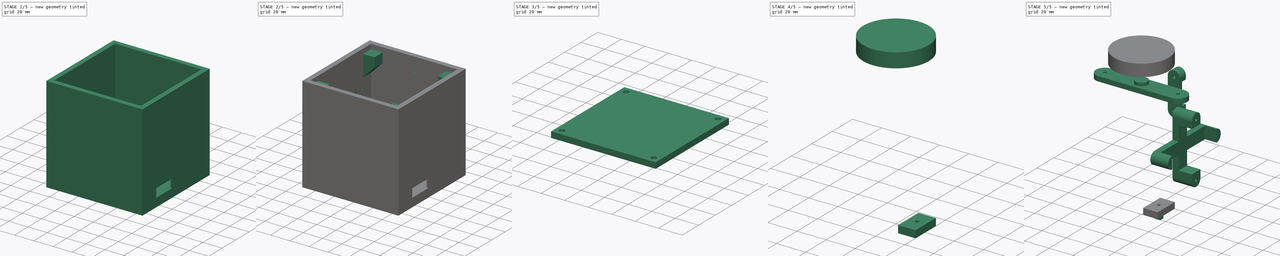
[diagram: build sequence overview — one tinted view per stage of 5, left to right]
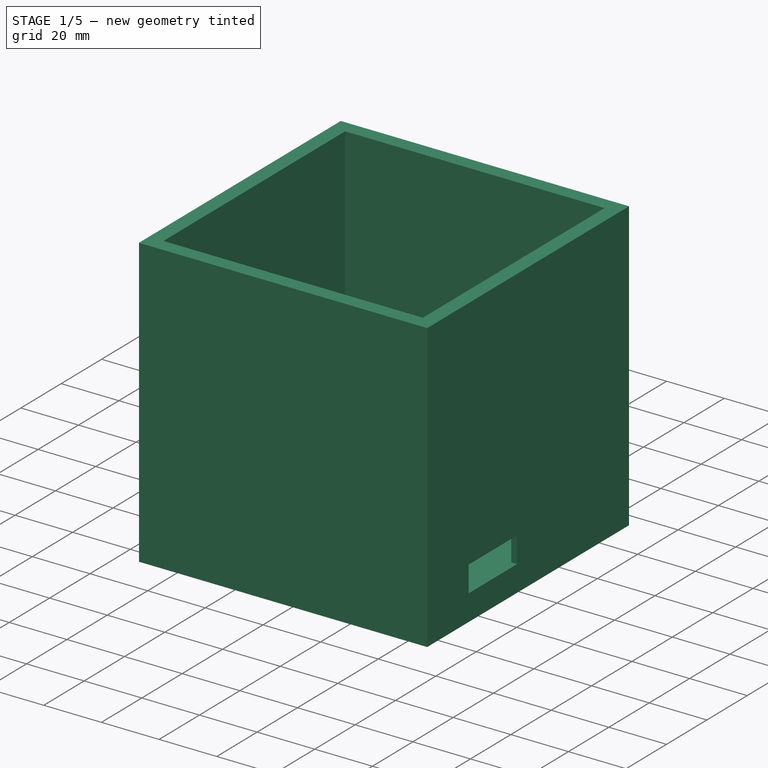
[diagram: stage 1 of 5 — iso view after this stage's code; geometry added in this stage tinted green]
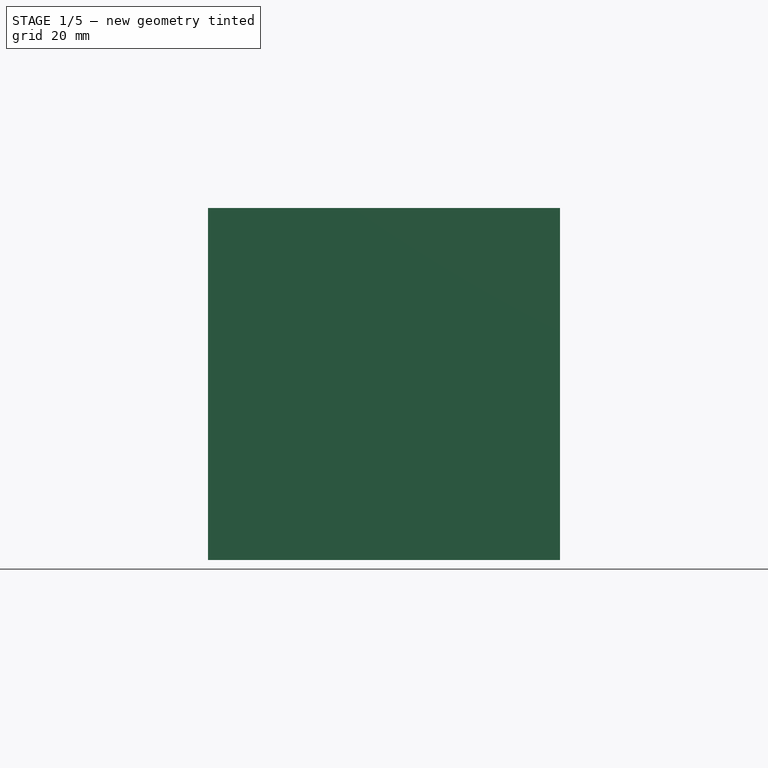
[diagram: stage 1 of 5 — front view after this stage's code; geometry added in this stage tinted green]
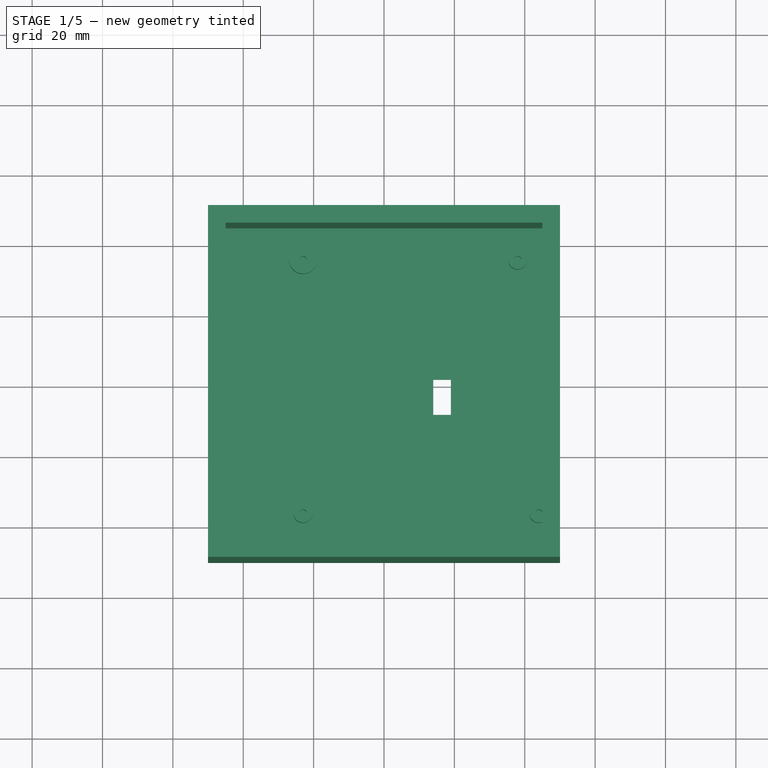
[diagram: stage 1 of 5 — top view after this stage's code; geometry added in this stage tinted green]
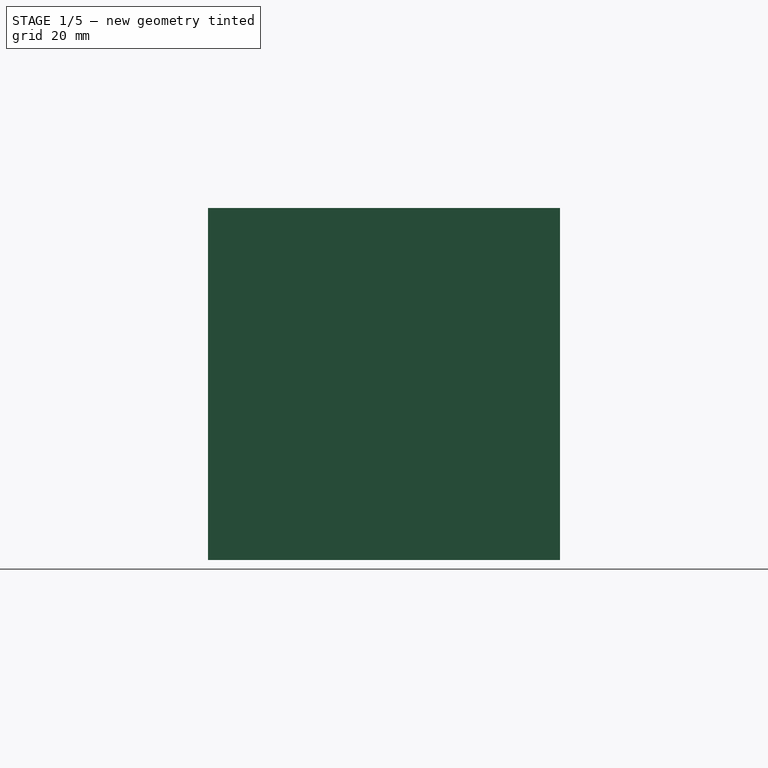
[diagram: stage 1 of 5 — right view after this stage's code; geometry added in this stage tinted green]
FCSTD DOCUMENT  (FreeCAD 0.21R33675 (Git))
Label: box
License: All rights reserved
LicenseURL: http://en.wikipedia.org/wiki/All_rights_reserved
objects: Sketcher::SketchObject×34, PartDesign::Pocket×22, PartDesign::Pad×12, PartDesign::Body×8, PartDesign::ShapeBinder×7, PartDesign::LinearPattern×3, PartDesign::Mirrored×2, PartDesign::MultiTransform×2, PartDesign::Fillet×1
note: 126 computed .brp shape members not serialized (recipe doc carries the construction recipe); baked Part::Feature solids carry a one-line shape summary decoded from their .brp

FEATURE [Sketcher::SketchObject] Sketch
  FullyConstrained = true
  MapMode = 5
  Support = -> [XY_Plane]
  sketch-geometry (6):
    g0: LineSegment StartX=-50 StartY=50 StartZ=0 EndX=50 EndY=50 EndZ=0
    g1: LineSegment StartX=50 StartY=50 StartZ=0 EndX=50 EndY=-50 EndZ=0
    g2: LineSegment StartX=50 StartY=-50 StartZ=0 EndX=-50 EndY=-50 EndZ=0
    g3: LineSegment StartX=-50 StartY=-50 StartZ=0 EndX=-50 EndY=50 EndZ=0
    g4: LineSegment StartX=-50 StartY=50 StartZ=0 EndX=50 EndY=-50 EndZ=0
    g5: LineSegment StartX=-50 StartY=-50 StartZ=0 EndX=50 EndY=50 EndZ=0
  constraints (16):
    c: Coincident(g0,g1)
    c: Coincident(g1,g2)
    c: Coincident(g2,g3)
    c: Coincident(g3,g0)
    c: Horizontal(g0)
    c: Horizontal(g2)
    c: Vertical(g1)
    c: Vertical(g3)
    c: Distance(g0) = 100
    c: Distance(g3) = 100
    c: Coincident(g4,g0)
    c: Coincident(g4,g1)
    c: Coincident(g5,g2)
    c: Coincident(g5,g0)
    c: PointOnObject(g-1,g4)
    c: PointOnObject(g-1,g5)
FEATURE [PartDesign::Pad] Pad
  Direction = (0,0,1)
  Length = 100
  Length2 = 10
  Profile = -> Sketch
  ReferenceAxis = -> Sketch [N_Axis]
  Type = 0
FEATURE [Sketcher::SketchObject] Sketch001
  FullyConstrained = true
  MapMode = 5
  Placement = pos=(0,0,100) rot=(0,0,1;0rad)
  Support = -> [Pad]
  sketch-geometry (6):
    g0: LineSegment StartX=-45 StartY=45 StartZ=0 EndX=45 EndY=45 EndZ=0
    g1: LineSegment StartX=45 StartY=45 StartZ=0 EndX=45 EndY=-45 EndZ=0
    g2: LineSegment StartX=45 StartY=-45 StartZ=0 EndX=-45 EndY=-45 EndZ=0
    g3: LineSegment StartX=-45 StartY=-45 StartZ=0 EndX=-45 EndY=45 EndZ=0
    g4: LineSegment StartX=-45 StartY=45 StartZ=0 EndX=45 EndY=-45 EndZ=0
    g5: LineSegment StartX=-45 StartY=-45 StartZ=0 EndX=45 EndY=45 EndZ=0
  constraints (16):
    c: Coincident(g0,g1)
    c: Coincident(g1,g2)
    c: Coincident(g2,g3)
    c: Coincident(g3,g0)
    c: Horizontal(g0)
    c: Horizontal(g2)
    c: Vertical(g1)
    c: Vertical(g3)
    c: Distance(g0) = 90
    c: Distance(g1) = 90
    c: Coincident(g4,g0)
    c: Coincident(g4,g1)
    c: Coincident(g5,g2)
    c: Coincident(g5,g0)
    c: PointOnObject(g-1,g5)
    c: PointOnObject(g-1,g4)
FEATURE [PartDesign::Pocket] Pocket
  BaseFeature = -> Pad
  Direction = (0,0,-1)
  Length = 95
  Length2 = 5
  Profile = -> Sketch001
  ReferenceAxis = -> Sketch001 [N_Axis]
  Type = 0
FEATURE [Sketcher::SketchObject] Sketch002
  FullyConstrained = true
  MapMode = 5
  Placement = pos=(0,0,0) rot=(1,0,0;1.5708rad)
  Support = -> [XZ_Plane]
  sketch-geometry (4):
    g0: LineSegment StartX=28 StartY=5 StartZ=0 EndX=48 EndY=5 EndZ=0
    g1: LineSegment StartX=48 StartY=5 StartZ=0 EndX=48 EndY=23 EndZ=0
    g2: LineSegment StartX=48 StartY=23 StartZ=0 EndX=28 EndY=43 EndZ=0
    g3: LineSegment StartX=28 StartY=43 StartZ=0 EndX=28 EndY=5 EndZ=0
  constraints (12):
    c: Horizontal(g0)
    c: Coincident(g0,g1)
    c: Vertical(g1)
    c: Coincident(g1,g2)
    c: Coincident(g2,g3)
    c: Coincident(g3,g0)
    c: Vertical(g3)
    c: Angle(g3,g2) = 0.785398
    c: Distance(g1) = 18
    c: DistanceY(g-1,g0) = 5
    c: DistanceX(g-2,g0) = 48
    c: Distance(g0) = 20
FEATURE [PartDesign::Pocket] Pocket001
  BaseFeature = -> Pocket
  Direction = (0,1,2e-16)
  Length = 45
  Length2 = 5
  Profile = -> Sketch002
  ReferenceAxis = -> Sketch002 [N_Axis]
  Type = 0
FEATURE [PartDesign::Mirrored] Mirrored
  BaseFeature = -> Pocket001
  MirrorPlane = -> XZ_Plane
  Originals = -> [Pocket001]
FEATURE [Sketcher::SketchObject] Sketch003
  FullyConstrained = true
  MapMode = 5
  Placement = pos=(0,0,5) rot=(0,0,1;0rad)
  Support = -> [Mirrored]
  sketch-geometry (8):
    g0: Circle CenterX=-23 CenterY=36 CenterZ=0 NormalX=0 NormalY=0 NormalZ=1 AngleXU=0 Radius=4
    g1: Circle CenterX=38 CenterY=36 CenterZ=0 NormalX=0 NormalY=0 NormalZ=1 AngleXU=0 Radius=2.75
    g2: Circle CenterX=44 CenterY=-36 CenterZ=0 NormalX=0 NormalY=0 NormalZ=1 AngleXU=0 Radius=2.75
    g3: Circle CenterX=-23 CenterY=-36 CenterZ=0 NormalX=0 NormalY=0 NormalZ=1 AngleXU=0 Radius=2.75
    g4: Circle CenterX=-23 CenterY=36 CenterZ=0 NormalX=0 NormalY=0 NormalZ=1 AngleXU=0 Radius=1
    g5: Circle CenterX=38 CenterY=36 CenterZ=0 NormalX=0 NormalY=0 NormalZ=1 AngleXU=0 Radius=1
    g6: Circle CenterX=44 CenterY=-36 CenterZ=0 NormalX=0 NormalY=0 NormalZ=1 AngleXU=0 Radius=1
    g7: Circle CenterX=-23 CenterY=-36 CenterZ=0 NormalX=0 NormalY=0 NormalZ=1 AngleXU=0 Radius=1
  constraints (20):
    c: Diameter(g0) = 8
    c: Diameter(g1) = 5.5
    c: Diameter(g2) = 5.5
    c: Diameter(g3) = 5.5
    c: DistanceY(g3,g0) = 72
    c: DistanceY(g2,g1) = 72
    c: DistanceX(g3,g2) = 67
    c: Horizontal(g3,g2)
    c: Vertical(g3,g0)
    c: DistanceX(g-1,g2) = 44
    c: DistanceY(g-1,g0) = 36
    c: Coincident(g4,g0)
    c: Coincident(g5,g1)
    c: Coincident(g6,g2)
    c: Coincident(g7,g3)
    c: Diameter(g7) = 2
    c: Diameter(g6) = 2
    c: Diameter(g5) = 2
    c: Diameter(g4) = 2
    c: DistanceX(g0,g1) = 61
FEATURE [PartDesign::Pad] Pad001
  BaseFeature = -> Mirrored
  Direction = (0,0,1)
  Length = 10
  Length2 = 10
  Profile = -> Sketch003
  ReferenceAxis = -> Sketch003 [N_Axis]
  Type = 0
FEATURE [Sketcher::SketchObject] Sketch004
  FullyConstrained = true
  MapMode = 5
  Placement = pos=(48,0,0) rot=(0.57735,-0.57735,-0.57735;2.0944rad)
  Support = -> [Pad001]
  sketch-geometry (7):
    g0: LineSegment StartX=5.5 StartY=18 StartZ=0 EndX=29.5 EndY=18 EndZ=0
    g1: LineSegment StartX=29.5 StartY=18 StartZ=0 EndX=29.5 EndY=9 EndZ=0
    g2: LineSegment StartX=29.5 StartY=9 StartZ=0 EndX=5.5 EndY=9 EndZ=0
    g3: LineSegment StartX=5.5 StartY=9 StartZ=0 EndX=5.5 EndY=18 EndZ=0
    g4: LineSegment StartX=5.5 StartY=18 StartZ=0 EndX=29.5 EndY=9 EndZ=0
    g5: LineSegment StartX=5.5 StartY=9 StartZ=0 EndX=29.5 EndY=18 EndZ=0
    g6: GeomPoint X=17.5 Y=13.5 Z=0
  constraints (18):
    c: Coincident(g0,g1)
    c: Coincident(g1,g2)
    c: Coincident(g2,g3)
    c: Coincident(g3,g0)
    c: Horizontal(g0)
    c: Horizontal(g2)
    c: Vertical(g1)
    c: Vertical(g3)
    c: DistanceY(g-1,g1) = 9
    c: Distance(g1) = 9
    c: Distance(g0) = 24
    c: Coincident(g4,g0)
    c: Coincident(g4,g1)
    c: Coincident(g5,g2)
    c: Coincident(g5,g0)
    c: PointOnObject(g6,g4)
    c: PointOnObject(g6,g5)
    c: DistanceX(g-2,g6) = 17.5
FEATURE [PartDesign::Pocket] Pocket002
  BaseFeature = -> Pad001
  Direction = (1,0,0)
  Length = 5
  Length2 = 5
  Profile = -> Sketch004
  ReferenceAxis = -> Sketch004 [N_Axis]
  Type = 0
FEATURE [Sketcher::SketchObject] Sketch005
  FullyConstrained = true
  MapMode = 5
  Placement = pos=(0,0,5) rot=(0,0,1;0rad)
  Support = -> [Pocket002]
  sketch-geometry (7):
    g0: LineSegment StartX=14 StartY=2 StartZ=0 EndX=19 EndY=2 EndZ=0
    g1: LineSegment StartX=19 StartY=2 StartZ=0 EndX=19 EndY=-8 EndZ=0
    g2: LineSegment StartX=19 StartY=-8 StartZ=0 EndX=14 EndY=-8 EndZ=0
    g3: LineSegment StartX=14 StartY=-8 StartZ=0 EndX=14 EndY=2 EndZ=0
    g4: LineSegment StartX=14 StartY=2 StartZ=0 EndX=19 EndY=-8 EndZ=0
    g5: LineSegment StartX=14 StartY=-8 StartZ=0 EndX=19 EndY=2 EndZ=0
    g6: GeomPoint X=16.5 Y=-3 Z=0
  constraints (18):
    c: Coincident(g0,g1)
    c: Coincident(g1,g2)
    c: Coincident(g2,g3)
    c: Coincident(g3,g0)
    c: Horizontal(g0)
    c: Horizontal(g2)
    c: Vertical(g1)
    c: Vertical(g3)
    c: Distance(g1) = 10
    c: Distance(g0) = 5
    c: Coincident(g4,g0)
    c: Coincident(g4,g1)
    c: Coincident(g5,g2)
    c: Coincident(g5,g0)
    c: PointOnObject(g6,g4)
    c: PointOnObject(g6,g5)
    c: DistanceY(g-1,g6) = -3
    c: DistanceX(g-1,g6) = 16.5
FEATURE [PartDesign::Pocket] Pocket003
  BaseFeature = -> Pocket002
  Direction = (0,0,-1)
  Length = 6
  Length2 = 5
  Profile = -> Sketch005
  ReferenceAxis = -> Sketch005 [N_Axis]
  Type = 0
FEATURE [Sketcher::SketchObject] Sketch006
  FullyConstrained = true
  MapMode = 5
  Placement = pos=(0,0,0) rot=(1,0,0;3.14159rad)
  Support = -> [Pocket003]
  sketch-geometry (7):
    g0: LineSegment StartX=9 StartY=15.5 StartZ=0 EndX=24 EndY=15.5 EndZ=0
    g1: LineSegment StartX=24 StartY=15.5 StartZ=0 EndX=24 EndY=-9.5 EndZ=0
    g2: LineSegment StartX=24 StartY=-9.5 StartZ=0 EndX=9 EndY=-9.5 EndZ=0
    g3: LineSegment StartX=9 StartY=-9.5 StartZ=0 EndX=9 EndY=15.5 EndZ=0
    g4: LineSegment StartX=9 StartY=15.5 StartZ=0 EndX=24 EndY=-9.5 EndZ=0
    g5: LineSegment StartX=9 StartY=-9.5 StartZ=0 EndX=24 EndY=15.5 EndZ=0
    g6: GeomPoint X=16.5 Y=3 Z=0
  constraints (18):
    c: Coincident(g0,g1)
    c: Coincident(g1,g2)
    c: Coincident(g2,g3)
    c: Coincident(g3,g0)
    c: Horizontal(g0)
    c: Horizontal(g2)
    c: Vertical(g1)
    c: Vertical(g3)
    c: Distance(g0) = 15
    c: Distance(g1) = 25
    c: Coincident(g4,g0)
    c: Coincident(g4,g1)
    c: Coincident(g5,g2)
    c: Coincident(g5,g0)
    c: PointOnObject(g6,g4)
    c: PointOnObject(g6,g5)
    c: DistanceY(g-1,g6) = 3
    c: DistanceX(g-2,g6) = 16.5
FEATURE [PartDesign::Pocket] Pocket004
  BaseFeature = -> Pocket003
  Direction = (0,0,1)
  Length = 3
  Length2 = 5
  Profile = -> Sketch006
  ReferenceAxis = -> Sketch006 [N_Axis]
  Type = 0
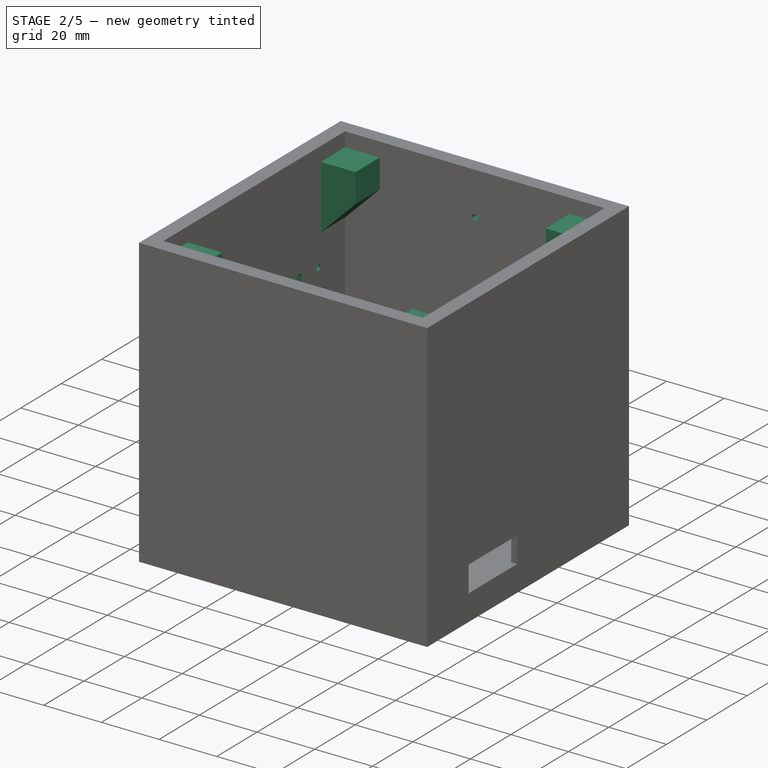
[diagram: stage 2 of 5 — iso view after this stage's code; geometry added in this stage tinted green]
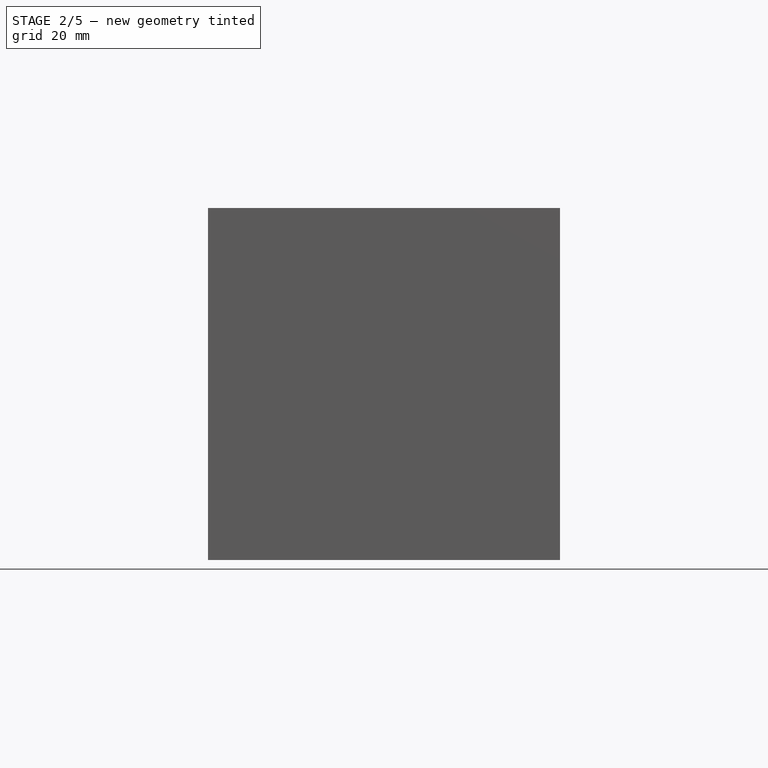
[diagram: stage 2 of 5 — front view after this stage's code; geometry added in this stage tinted green]
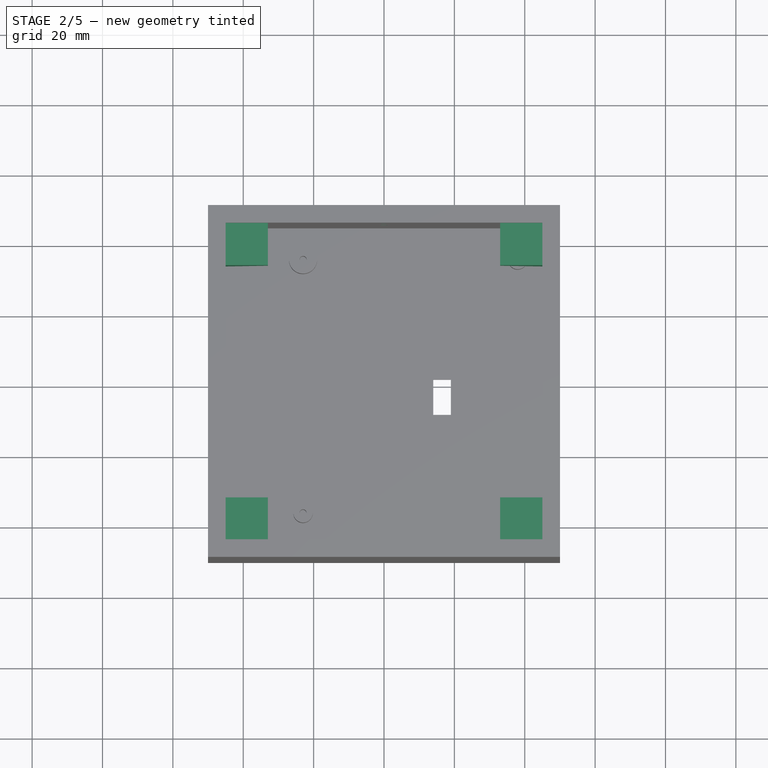
[diagram: stage 2 of 5 — top view after this stage's code; geometry added in this stage tinted green]
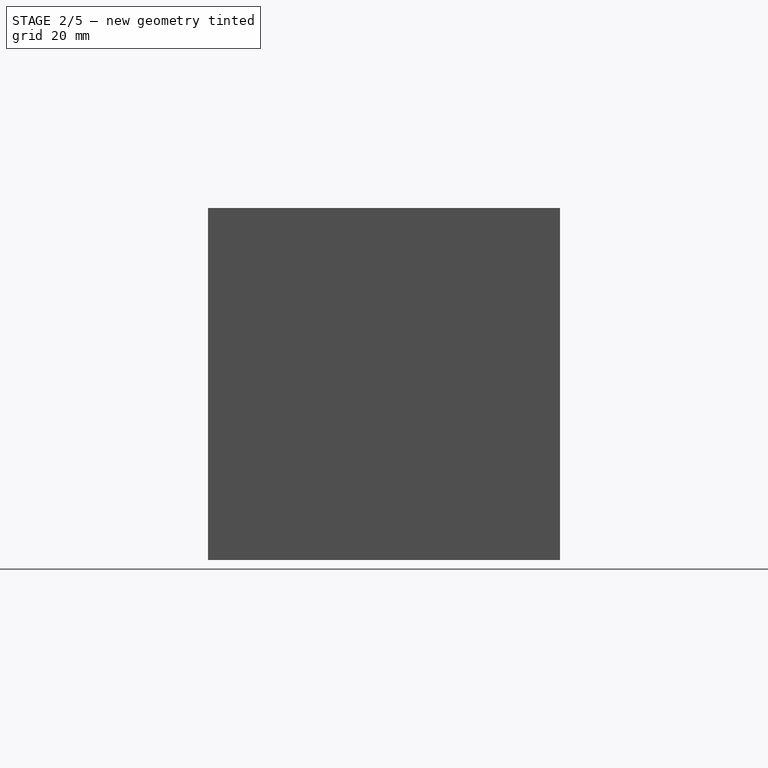
[diagram: stage 2 of 5 — right view after this stage's code; geometry added in this stage tinted green]
FEATURE [Sketcher::SketchObject] Sketch007
  FullyConstrained = true
  MapMode = 5
  Placement = pos=(-45,0,0) rot=(0.57735,0.57735,0.57735;2.0944rad)
  Support = -> [Pocket004]
  sketch-geometry (7):
    g0: Circle CenterX=-31.75 CenterY=62.25 CenterZ=0 NormalX=0 NormalY=0 NormalZ=1 AngleXU=0 Radius=1
    g1: Circle CenterX=31.75 CenterY=62.25 CenterZ=0 NormalX=0 NormalY=0 NormalZ=1 AngleXU=0 Radius=1
    g2: Circle CenterX=-31.75 CenterY=37.75 CenterZ=0 NormalX=0 NormalY=0 NormalZ=1 AngleXU=0 Radius=1
    g3: Circle CenterX=31.75 CenterY=37.75 CenterZ=0 NormalX=0 NormalY=0 NormalZ=1 AngleXU=0 Radius=1
    g4: LineSegment StartX=-31.75 StartY=62.25 StartZ=0 EndX=31.75 EndY=37.75 EndZ=0
    g5: LineSegment StartX=-31.75 StartY=37.75 StartZ=0 EndX=31.75 EndY=62.25 EndZ=0
    g6: GeomPoint X=0 Y=50 Z=0
  constraints (18):
    c: Diameter(g3) = 2
    c: Diameter(g1) = 2
    c: Diameter(g0) = 2
    c: Diameter(g2) = 2
    c: DistanceX(g0,g1) = 63.5
    c: Vertical(g1,g3)
    c: Vertical(g0,g2)
    c: Horizontal(g0,g1)
    c: Horizontal(g2,g3)
    c: DistanceY(g3,g1) = 24.5
    c: Coincident(g4,g0)
    c: Coincident(g4,g3)
    c: Coincident(g5,g2)
    c: Coincident(g5,g1)
    c: PointOnObject(g6,g4)
    c: PointOnObject(g6,g5)
    c: PointOnObject(g6,g-2)
    c: Distance(g-1,g6) = 50
FEATURE [PartDesign::Pocket] Pocket005
  BaseFeature = -> Pocket004
  Direction = (-1,0,0)
  Length = 4
  Length2 = 5
  Profile = -> Sketch007
  ReferenceAxis = -> Sketch007 [N_Axis]
  Type = 0
FEATURE [Sketcher::SketchObject] Sketch008
  FullyConstrained = true
  MapMode = 5
  Placement = pos=(-45,0,0) rot=(0.57735,0.57735,0.57735;2.0944rad)
  Support = -> [Pocket005]
  sketch-geometry (4):
    g0: ArcOfCircle CenterX=0 CenterY=62.5 CenterZ=0 NormalX=0 NormalY=0 NormalZ=1 AngleXU=0 Radius=1.5 StartAngle=-1.8e-15 EndAngle=3.14159
    g1: ArcOfCircle CenterX=-1e-16 CenterY=37.5 CenterZ=0 NormalX=0 NormalY=0 NormalZ=1 AngleXU=0 Radius=1.5 StartAngle=3.14159 EndAngle=6.28319
    g2: LineSegment StartX=-1.5 StartY=62.5 StartZ=0 EndX=-1.5 EndY=37.5 EndZ=0
    g3: LineSegment StartX=1.5 StartY=37.5 StartZ=0 EndX=1.5 EndY=62.5 EndZ=0
  constraints (10):
    c: Tangent(g0,g2) = -1.5708
    c: Tangent(g2,g1) = -1.5708
    c: Tangent(g1,g3) = -1.5708
    c: Tangent(g3,g0) = -1.5708
    c: Equal(g0,g1)
    c: Vertical(g2)
    c: Diameter(g0) = 3
    c: Distance(g0,g1) = 25
    c: PointOnObject(g0,g-2)
    c: Distance(g-1,g1) = 37.5
FEATURE [PartDesign::Pocket] Pocket006
  BaseFeature = -> Pocket005
  Direction = (-1,0,0)
  Length = 6
  Length2 = 5
  Profile = -> Sketch008
  ReferenceAxis = -> Sketch008 [N_Axis]
  Type = 0
FEATURE [PartDesign::LinearPattern] LinearPattern
  Direction = -> Sketch008 [H_Axis]
  Length = 22
  Occurrences = 4
FEATURE [PartDesign::LinearPattern] LinearPattern001
  Direction = -> Sketch008 [H_Axis]
  Length = 22
  Occurrences = 2
  Reversed = true
FEATURE [PartDesign::MultiTransform] MultiTransform
  BaseFeature = -> Pocket006
  Originals = -> [Pocket006]
  Transformations = -> [LinearPattern,LinearPattern001]
FEATURE [Sketcher::SketchObject] Sketch009
  FullyConstrained = true
  MapMode = 5
  Placement = pos=(45,0,0) rot=(0.57735,-0.57735,-0.57735;2.0944rad)
  Support = -> [MultiTransform]
  sketch-geometry (2):
    g0: Circle CenterX=0 CenterY=80 CenterZ=0 NormalX=0 NormalY=0 NormalZ=1 AngleXU=0 Radius=1
    g1: Circle CenterX=0 CenterY=35 CenterZ=0 NormalX=0 NormalY=0 NormalZ=1 AngleXU=0 Radius=1
  constraints (6):
    c: Diameter(g1) = 2
    c: Diameter(g0) = 2
    c: PointOnObject(g1,g-2)
    c: PointOnObject(g0,g-2)
    c: Distance(g0,g1) = 45
    c: Distance(g-1,g1) = 35
FEATURE [PartDesign::Pocket] Pocket007
  BaseFeature = -> MultiTransform
  Direction = (1,0,0)
  Length = 4
  Length2 = 5
  Profile = -> Sketch009
  ReferenceAxis = -> Sketch009 [N_Axis]
  Type = 0
FEATURE [Sketcher::SketchObject] Sketch010
  FullyConstrained = true
  MapMode = 5
  Placement = pos=(0,45,0) rot=(1,0,0;1.5708rad)
  Support = -> [Pocket007]
  sketch-geometry (2):
    g0: Circle CenterX=0 CenterY=85 CenterZ=0 NormalX=0 NormalY=0 NormalZ=1 AngleXU=0 Radius=1
    g1: Circle CenterX=0 CenterY=60 CenterZ=0 NormalX=0 NormalY=0 NormalZ=1 AngleXU=0 Radius=1
  constraints (6):
    c: Diameter(g0) = 2
    c: Diameter(g1) = 2
    c: PointOnObject(g1,g-2)
    c: PointOnObject(g0,g-2)
    c: Distance(g0,g1) = 25
    c: Distance(g-1,g1) = 60
FEATURE [PartDesign::Pocket] Pocket008
  BaseFeature = -> Pocket007
  Direction = (0,1,-2e-16)
  Length = 4
  Length2 = 5
  Profile = -> Sketch010
  ReferenceAxis = -> Sketch010 [N_Axis]
  Type = 0
FEATURE [Sketcher::SketchObject] Sketch011
  FullyConstrained = true
  MapMode = 5
  Placement = pos=(0,45,0) rot=(1,0,0;1.5708rad)
  Support = -> [Pocket008]
  sketch-geometry (4):
    g0: LineSegment StartX=-45 StartY=95 StartZ=0 EndX=-33 EndY=95 EndZ=0
    g1: LineSegment StartX=-33 StartY=95 StartZ=0 EndX=-33 EndY=85 EndZ=0
    g2: LineSegment StartX=-33 StartY=85 StartZ=0 EndX=-45 EndY=73 EndZ=0
    g3: LineSegment StartX=-45 StartY=73 StartZ=0 EndX=-45 EndY=95 EndZ=0
  constraints (12):
    c: Horizontal(g0)
    c: Coincident(g0,g1)
    c: Vertical(g1)
    c: Coincident(g1,g2)
    c: Coincident(g2,g3)
    c: Coincident(g3,g0)
    c: Vertical(g3)
    c: Angle(g2,g3) = 0.785398
    c: Distance(g0) = 12
    c: Distance(g1) = 10
    c: DistanceX(g-2,g2) = -45
    c: DistanceY(g-1,g0) = 95
FEATURE [PartDesign::Pad] Pad002
  BaseFeature = -> Pocket008
  Direction = (0,-1,2e-16)
  Length = 12
  Length2 = 10
  Profile = -> Sketch011
  ReferenceAxis = -> Sketch011 [N_Axis]
  Type = 0
FEATURE [PartDesign::Mirrored] Mirrored001
  MirrorPlane = -> Sketch011 [V_Axis]
FEATURE [PartDesign::LinearPattern] LinearPattern002
  Direction = -> Sketch011 [N_Axis]
  Length = 78
  Occurrences = 2
FEATURE [PartDesign::MultiTransform] MultiTransform001
  BaseFeature = -> Pad002
  Originals = -> [Pad002]
  Transformations = -> [Mirrored001,LinearPattern002]
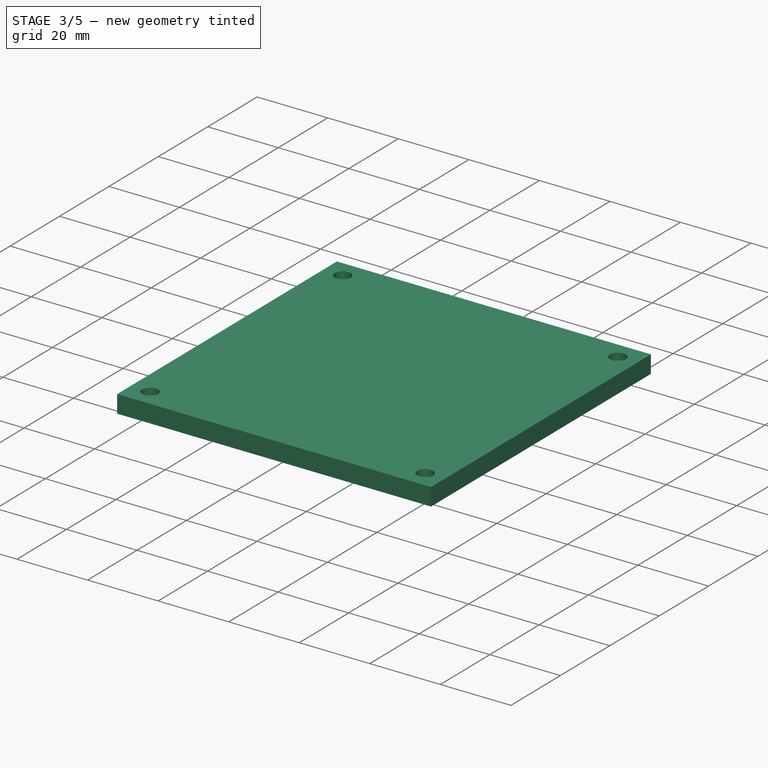
[diagram: stage 3 of 5 — iso view after this stage's code; geometry added in this stage tinted green]
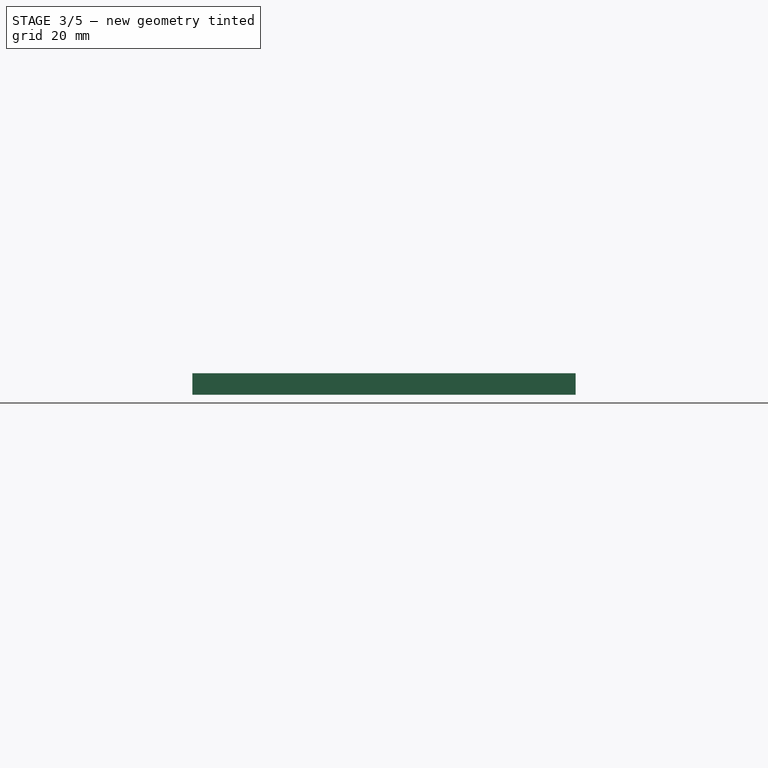
[diagram: stage 3 of 5 — front view after this stage's code; geometry added in this stage tinted green]
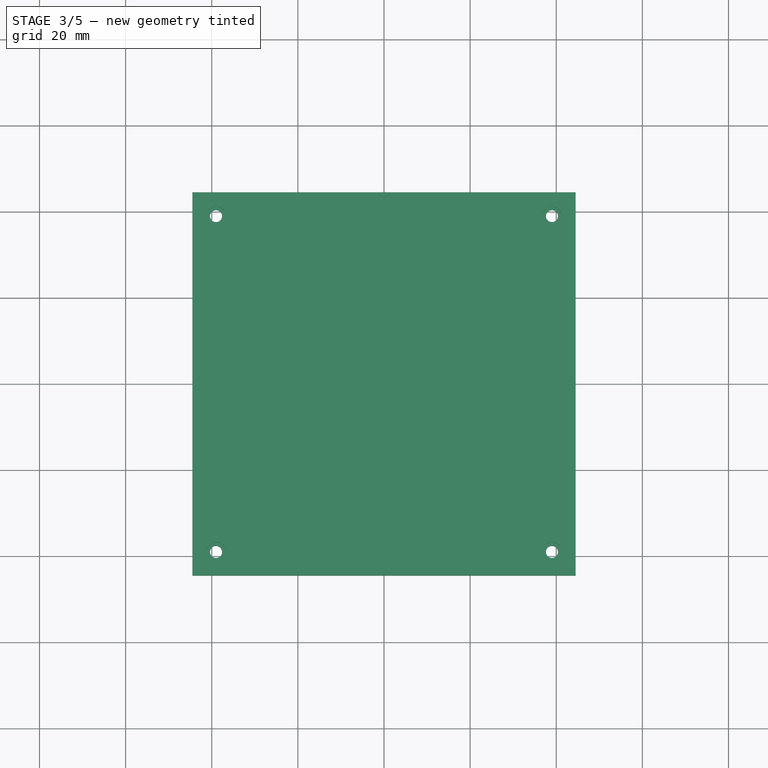
[diagram: stage 3 of 5 — top view after this stage's code; geometry added in this stage tinted green]
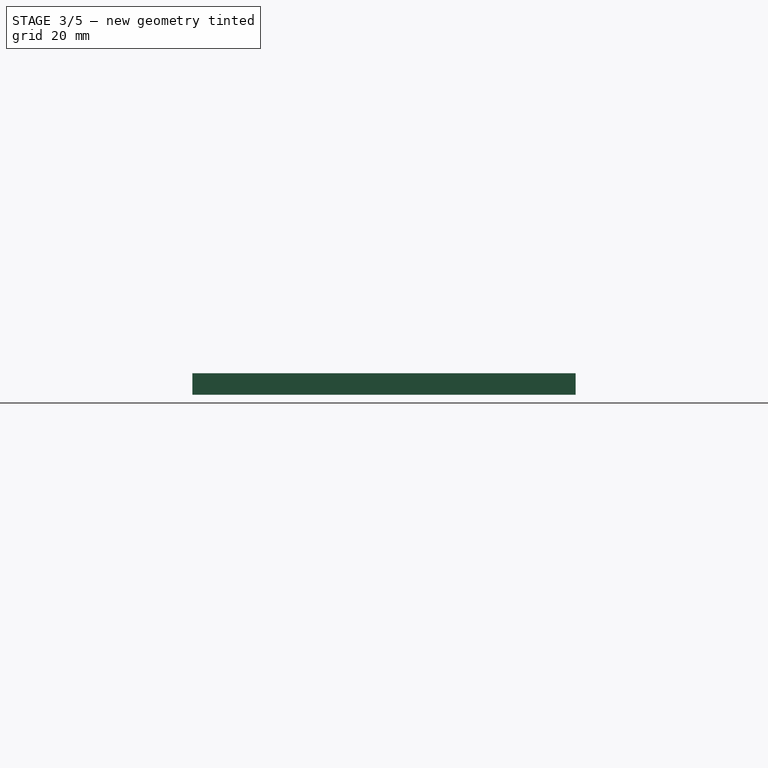
[diagram: stage 3 of 5 — right view after this stage's code; geometry added in this stage tinted green]
FEATURE [Sketcher::SketchObject] Sketch012
  FullyConstrained = true
  MapMode = 5
  Placement = pos=(0,2.11e-14,95) rot=(0,0,1;0rad)
  Support = -> [MultiTransform001]
  sketch-geometry (7):
    g0: Circle CenterX=-39 CenterY=39 CenterZ=0 NormalX=0 NormalY=0 NormalZ=1 AngleXU=0 Radius=1
    g1: Circle CenterX=39 CenterY=39 CenterZ=0 NormalX=0 NormalY=0 NormalZ=1 AngleXU=0 Radius=1
    g2: Circle CenterX=39 CenterY=-39 CenterZ=0 NormalX=0 NormalY=0 NormalZ=1 AngleXU=0 Radius=1
    g3: Circle CenterX=-39 CenterY=-39 CenterZ=0 NormalX=0 NormalY=0 NormalZ=1 AngleXU=0 Radius=1
    g4: LineSegment StartX=-39 StartY=39 StartZ=0 EndX=39 EndY=-39 EndZ=0
    g5: LineSegment StartX=39 StartY=39 StartZ=0 EndX=-39 EndY=-39 EndZ=0
    g6: GeomPoint X=0 Y=0 Z=0
  constraints (17):
    c: Diameter(g0) = 2
    c: Diameter(g1) = 2
    c: Diameter(g2) = 2
    c: Diameter(g3) = 2
    c: Horizontal(g3,g2)
    c: Horizontal(g0,g1)
    c: Vertical(g1,g2)
    c: Vertical(g3,g0)
    c: Coincident(g4,g0)
    c: Coincident(g4,g2)
    c: Coincident(g5,g1)
    c: Coincident(g5,g3)
    c: PointOnObject(g6,g4)
    c: PointOnObject(g6,g5)
    c: Coincident(g6,g-1)
    c: Distance(g3,g2) = 78
    c: Distance(g2,g1) = 78
FEATURE [PartDesign::Pocket] Pocket009
  BaseFeature = -> MultiTransform001
  Direction = (0,-2e-16,-1)
  Length = 10
  Length2 = 5
  Profile = -> Sketch012
  ReferenceAxis = -> Sketch012 [N_Axis]
  Type = 0
FEATURE [Sketcher::SketchObject] Sketch013
  FullyConstrained = true
  MapMode = 5
  Placement = pos=(0,2.11e-14,95) rot=(0,0,1;0rad)
  Support = -> [Pocket009]
  sketch-geometry (3):
    g0: LineSegment StartX=32 StartY=42 StartZ=0 EndX=42 EndY=32 EndZ=0
    g1: LineSegment StartX=42 StartY=32 StartZ=0 EndX=32 EndY=32 EndZ=0
    g2: LineSegment StartX=32 StartY=32 StartZ=0 EndX=32 EndY=42 EndZ=0
  constraints (9):
    c: Coincident(g0,g1)
    c: Coincident(g1,g2)
    c: Coincident(g2,g0)
    c: Horizontal(g1)
    c: Vertical(g2)
    c: Angle(g0,g1) = 0.785398
    c: DistanceX(g1,g1) = 10
    c: DistanceX(g-2,g1) = 32
    c: DistanceY(g-1,g1) = 32
FEATURE [PartDesign::Pocket] Pocket010
  BaseFeature = -> Pocket009
  Direction = (0,-2e-16,-1)
  Length = 20
  Length2 = 5
  Profile = -> Sketch013
  ReferenceAxis = -> Sketch013 [N_Axis]
  Type = 0
FEATURE [PartDesign::Fillet] Fillet
  Base = -> Pocket010 [Edge38,Edge2,Edge1,Edge5,Edge37,Edge4,Edge7,Edge48,Edge6,Edge43,Edge36,Edge3]
  BaseFeature = -> Pocket010
  Radius = 3
  SupportTransform = false
  UseAllEdges = false
FEATURE [PartDesign::Body] Body  label="box"
  Group = -> [Sketch,Pad,Sketch001,Pocket,Sketch002,Pocket001,Mirrored,Sketch003,Pad001,Sketch004,Pocket002,Sketch005,Pocket003,Sketch006,Pocket004,Sketch007,Pocket005,Sketch008,Pocket006,MultiTransform,LinearPattern,LinearPattern001,Sketch009,Pocket007,Sketch010,Pocket008,Sketch011,Pad002,MultiTransform001,Mirrored001,LinearPattern002,Sketch012,Pocket009,Sketch013,Pocket010,Fillet]
  Origin = -> Origin
  Tip = -> Fillet
FEATURE [PartDesign::ShapeBinder] ShapeBinder
  Support = -> [Fillet]
  TraceSupport = false
FEATURE [Sketcher::SketchObject] Sketch014
  FullyConstrained = true
  MapMode = 5
  Placement = pos=(0,2.11e-14,95) rot=(0,0,1;0rad)
  Support = -> [ShapeBinder]
  sketch-geometry (7):
    g0: LineSegment StartX=-44.5 StartY=44.5 StartZ=0 EndX=44.5 EndY=44.5 EndZ=0
    g1: LineSegment StartX=44.5 StartY=44.5 StartZ=0 EndX=44.5 EndY=-44.5 EndZ=0
    g2: LineSegment StartX=44.5 StartY=-44.5 StartZ=0 EndX=-44.5 EndY=-44.5 EndZ=0
    g3: LineSegment StartX=-44.5 StartY=-44.5 StartZ=0 EndX=-44.5 EndY=44.5 EndZ=0
    g4: LineSegment StartX=-44.5 StartY=44.5 StartZ=0 EndX=44.5 EndY=-44.5 EndZ=0
    g5: LineSegment StartX=-44.5 StartY=-44.5 StartZ=0 EndX=44.5 EndY=44.5 EndZ=0
    g6: GeomPoint X=0 Y=0 Z=0
  constraints (17):
    c: Coincident(g0,g1)
    c: Coincident(g1,g2)
    c: Coincident(g2,g3)
    c: Coincident(g3,g0)
    c: Horizontal(g0)
    c: Horizontal(g2)
    c: Vertical(g1)
    c: Vertical(g3)
    c: Distance(g0) = 89
    c: Distance(g1) = 89
    c: Coincident(g4,g0)
    c: Coincident(g4,g1)
    c: Coincident(g5,g2)
    c: Coincident(g5,g0)
    c: PointOnObject(g6,g4)
    c: PointOnObject(g6,g5)
    c: Coincident(g6,g-1)
FEATURE [PartDesign::Pad] Pad003
  Direction = (0,2e-16,1)
  Length = 5
  Length2 = 10
  Profile = -> Sketch014
  ReferenceAxis = -> Sketch014 [N_Axis]
  Type = 0
FEATURE [Sketcher::SketchObject] Sketch015
  FullyConstrained = true
  MapMode = 5
  Placement = pos=(0,3.19e-14,100) rot=(0,0,1;0rad)
  Support = -> [Pad003]
  sketch-geometry (4):
    g0: Circle CenterX=-39 CenterY=39 CenterZ=0 NormalX=0 NormalY=0 NormalZ=1 AngleXU=0 Radius=1.4
    g1: Circle CenterX=39 CenterY=39 CenterZ=0 NormalX=0 NormalY=0 NormalZ=1 AngleXU=0 Radius=1.4
    g2: Circle CenterX=39 CenterY=-39 CenterZ=0 NormalX=0 NormalY=0 NormalZ=1 AngleXU=0 Radius=1.4
    g3: Circle CenterX=-39 CenterY=-39 CenterZ=0 NormalX=0 NormalY=0 NormalZ=1 AngleXU=0 Radius=1.4
  constraints (10):
    c: Distance(g0,g1) = 78
    c: Distance(g2,g1) = 78
    c: Vertical(g1,g2)
    c: Horizontal(g3,g2)
    c: Symmetric(g0,g1,g-2)
    c: Symmetric(g0,g3,g-1)
    c: Diameter(g0) = 2.8
    c: Equal(g0,g1)
    c: Equal(g0,g3)
    c: Equal(g0,g2)
FEATURE [PartDesign::Pocket] Pocket011
  BaseFeature = -> Pad003
  Direction = (0,-3e-16,-1)
  Length = 6
  Length2 = 5
  Profile = -> Sketch015
  ReferenceAxis = -> Sketch015 [N_Axis]
  Type = 0
FEATURE [Sketcher::SketchObject] Sketch017
  FullyConstrained = true
  MapMode = 5
  Placement = pos=(0,3.19e-14,100) rot=(0,0,1;0rad)
  Support = -> [Pocket011]
  sketch-geometry (4):
    g0: Circle CenterX=-39 CenterY=39 CenterZ=0 NormalX=0 NormalY=0 NormalZ=1 AngleXU=0 Radius=2.25
    g1: Circle CenterX=39 CenterY=39 CenterZ=0 NormalX=0 NormalY=0 NormalZ=1 AngleXU=0 Radius=2.25
    g2: Circle CenterX=39 CenterY=-39 CenterZ=0 NormalX=0 NormalY=0 NormalZ=1 AngleXU=0 Radius=2.25
    g3: Circle CenterX=-39 CenterY=-39 CenterZ=0 NormalX=0 NormalY=0 NormalZ=1 AngleXU=0 Radius=2.25
  constraints (10):
    c: Distance(g0,g1) = 78
    c: Distance(g2,g1) = 78
    c: Vertical(g1,g2)
    c: Horizontal(g3,g2)
    c: Symmetric(g0,g1,g-2)
    c: Symmetric(g0,g3,g-1)
    c: Diameter(g0) = 4.5
    c: Equal(g0,g1)
    c: Equal(g0,g3)
    c: Equal(g0,g2)
FEATURE [PartDesign::Pocket] Pocket012
  BaseFeature = -> Pocket011
  Direction = (0,-3e-16,-1)
  Length = 2
  Length2 = 5
  Profile = -> Sketch017
  ReferenceAxis = -> Sketch017 [N_Axis]
  Type = 0
FEATURE [Sketcher::SketchObject] Sketch018
  FullyConstrained = true
  MapMode = 5
  Placement = pos=(0,3.03e-14,95) rot=(1,0,0;3.14159rad)
  Support = -> [Pocket012]
  sketch-geometry (1):
    g0: Circle CenterX=0 CenterY=0 CenterZ=0 NormalX=0 NormalY=0 NormalZ=1 AngleXU=0 Radius=11.2
  constraints (2):
    c: Diameter(g0) = 22.4
    c: Coincident(g0,g-1)
FEATURE [PartDesign::Pocket] Pocket013
  BaseFeature = -> Pocket012
  Direction = (0,3e-16,1)
  Length = 3.5
  Length2 = 5
  Profile = -> Sketch018
  ReferenceAxis = -> Sketch018 [N_Axis]
  Type = 0
FEATURE [Sketcher::SketchObject] Sketch019
  FullyConstrained = true
  MapMode = 5
  Placement = pos=(0,3.03e-14,95) rot=(1,0,0;3.14159rad)
  Support = -> [Pocket013]
  sketch-geometry (8):
    g0: LineSegment StartX=-21 StartY=15.5 StartZ=0 EndX=21 EndY=15.5 EndZ=0
    g1: LineSegment StartX=21 StartY=15.5 StartZ=0 EndX=21 EndY=-15.5 EndZ=0
    g2: LineSegment StartX=21 StartY=-15.5 StartZ=0 EndX=-21 EndY=-15.5 EndZ=0
    g3: LineSegment StartX=-21 StartY=-15.5 StartZ=0 EndX=-21 EndY=15.5 EndZ=0
    g4: LineSegment StartX=-23.5 StartY=19 StartZ=0 EndX=23.5 EndY=19 EndZ=0
    g5: LineSegment StartX=23.5 StartY=19 StartZ=0 EndX=23.5 EndY=-19 EndZ=0
    g6: LineSegment StartX=23.5 StartY=-19 StartZ=0 EndX=-23.5 EndY=-19 EndZ=0
    g7: LineSegment StartX=-23.5 StartY=-19 StartZ=0 EndX=-23.5 EndY=19 EndZ=0
  constraints (20):
    c: Coincident(g0,g1)
    c: Coincident(g1,g2)
    c: Coincident(g2,g3)
    c: Coincident(g3,g0)
    c: Horizontal(g2)
    c: Vertical(g1)
    c: Coincident(g4,g5)
    c: Coincident(g5,g6)
    c: Coincident(g6,g7)
    c: Coincident(g7,g4)
    c: Horizontal(g6)
    c: Vertical(g5)
    c: Distance(g4) = 47
    c: Distance(g5) = 38
    c: Distance(g0) = 42
    c: Distance(g1) = 31
    c: Symmetric(g0,g2,g-1)
    c: Symmetric(g0,g0,g-2)
    c: Symmetric(g4,g6,g-1)
    c: Symmetric(g4,g4,g-2)
FEATURE [PartDesign::Pocket] Pocket014
  BaseFeature = -> Pocket013
  Direction = (0,3e-16,1)
  Length = 2
  Length2 = 5
  Profile = -> Sketch019
  ReferenceAxis = -> Sketch019 [N_Axis]
  Type = 0
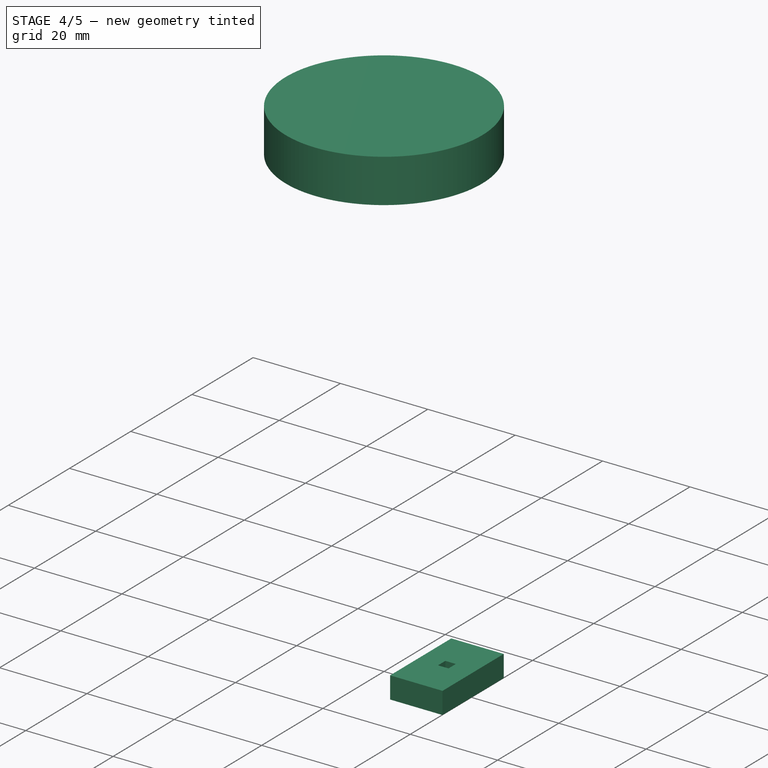
[diagram: stage 4 of 5 — iso view after this stage's code; geometry added in this stage tinted green]
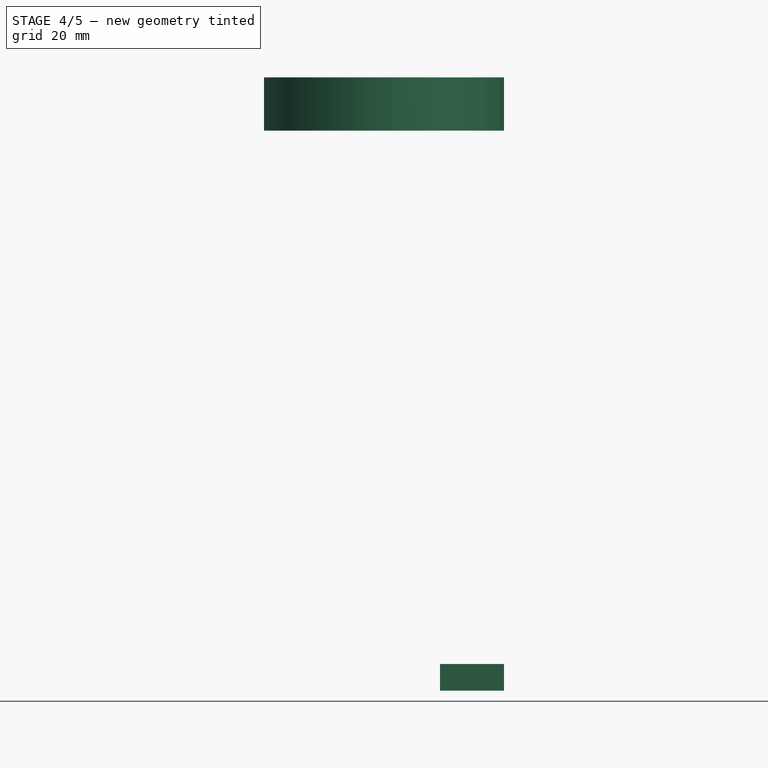
[diagram: stage 4 of 5 — front view after this stage's code; geometry added in this stage tinted green]
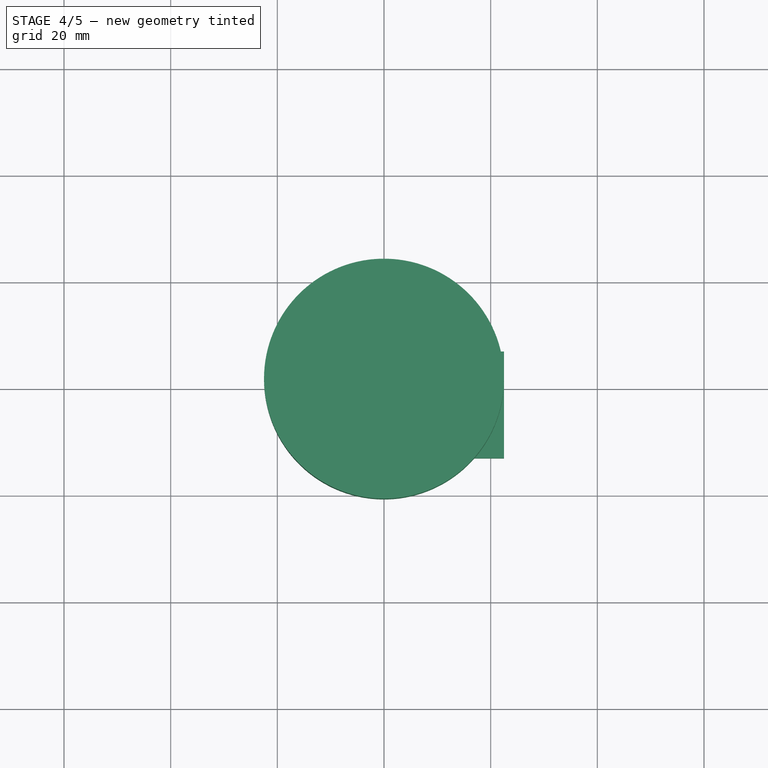
[diagram: stage 4 of 5 — top view after this stage's code; geometry added in this stage tinted green]
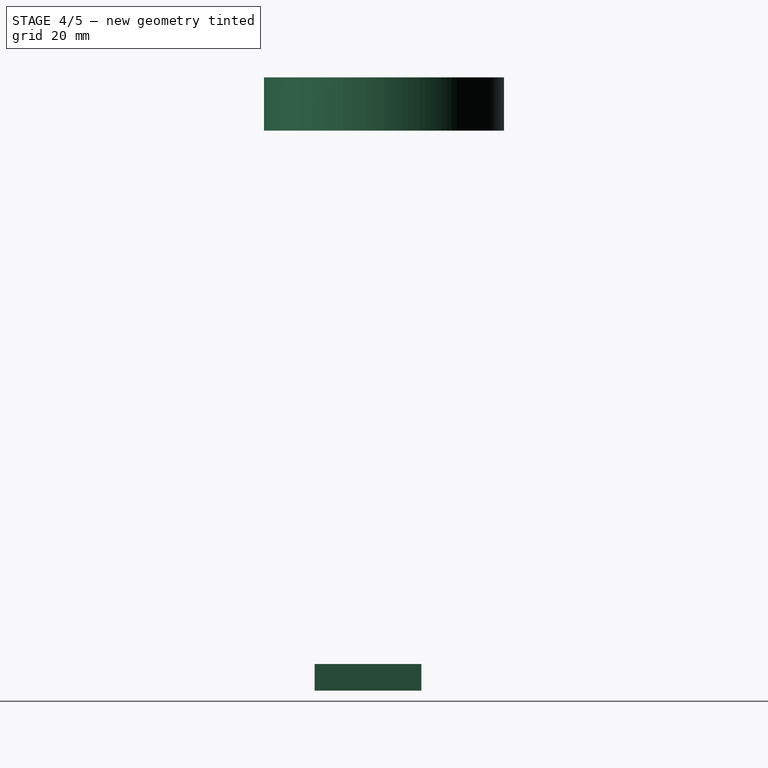
[diagram: stage 4 of 5 — right view after this stage's code; geometry added in this stage tinted green]
FEATURE [Sketcher::SketchObject] Sketch020
  FullyConstrained = true
  MapMode = 5
  Placement = pos=(0,3.03e-14,95) rot=(1,0,0;3.14159rad)
  Support = -> [Pocket014]
  sketch-geometry (4):
    g0: Circle CenterX=0 CenterY=25 CenterZ=0 NormalX=0 NormalY=0 NormalZ=1 AngleXU=0 Radius=0.95
    g1: Circle CenterX=0 CenterY=-25 CenterZ=0 NormalX=0 NormalY=0 NormalZ=1 AngleXU=0 Radius=0.95
    g2: Circle CenterX=30 CenterY=0 CenterZ=0 NormalX=0 NormalY=0 NormalZ=1 AngleXU=0 Radius=0.95
    g3: Circle CenterX=-30 CenterY=0 CenterZ=0 NormalX=0 NormalY=0 NormalZ=1 AngleXU=0 Radius=0.95
  constraints (10):
    c: PointOnObject(g0,g-2)
    c: PointOnObject(g2,g-1)
    c: Diameter(g0) = 1.9
    c: Equal(g0,g2)
    c: Equal(g0,g3)
    c: Equal(g0,g1)
    c: Symmetric(g1,g0,g-1)
    c: Symmetric(g3,g2,g-2)
    c: Distance(g3,g2) = 60
    c: Distance(g0,g1) = 50
FEATURE [PartDesign::Pocket] Pocket015
  BaseFeature = -> Pocket014
  Direction = (0,3e-16,1)
  Length = 4
  Length2 = 5
  Profile = -> Sketch020
  ReferenceAxis = -> Sketch020 [N_Axis]
  Type = 0
FEATURE [PartDesign::Body] Body004  label="schnalle_batterie"
  Group = -> [ShapeBinder003,Sketch025,Pad007,Sketch026,Pocket017,Sketch027,Pocket018]
  Origin = -> Origin004
  Tip = -> Pocket018
FEATURE [PartDesign::ShapeBinder] ShapeBinder004
  Support = -> [Fillet]
  TraceSupport = false
FEATURE [Sketcher::SketchObject] Sketch028
  FullyConstrained = true
  MapMode = 5
  Placement = pos=(0,0,5) rot=(0,0,1;0rad)
  Support = -> [ShapeBinder004]
  sketch-geometry (11):
    g0: LineSegment StartX=10.5 StartY=7 StartZ=0 EndX=22.5 EndY=7 EndZ=0
    g1: LineSegment StartX=22.5 StartY=7 StartZ=0 EndX=22.5 EndY=-13 EndZ=0
    g2: LineSegment StartX=22.5 StartY=-13 StartZ=0 EndX=10.5 EndY=-13 EndZ=0
    g3: LineSegment StartX=10.5 StartY=-13 StartZ=0 EndX=10.5 EndY=7 EndZ=0
    g4: LineSegment StartX=15.3 StartY=-1.8 StartZ=0 EndX=17.7 EndY=-1.8 EndZ=0
    g5: LineSegment StartX=17.7 StartY=-1.8 StartZ=0 EndX=17.7 EndY=-4.2 EndZ=0
    g6: LineSegment StartX=17.7 StartY=-4.2 StartZ=0 EndX=15.3 EndY=-4.2 EndZ=0
    g7: LineSegment StartX=15.3 StartY=-4.2 StartZ=0 EndX=15.3 EndY=-1.8 EndZ=0
    g8: LineSegment StartX=10.5 StartY=7 StartZ=0 EndX=22.5 EndY=-13 EndZ=0
    g9: LineSegment StartX=10.5 StartY=-13 StartZ=0 EndX=22.5 EndY=7 EndZ=0
    g10: GeomPoint X=16.5 Y=-3 Z=0
  constraints (29):
    c: Coincident(g0,g1)
    c: Coincident(g1,g2)
    c: Coincident(g2,g3)
    c: Coincident(g3,g0)
    c: Horizontal(g0)
    c: Horizontal(g2)
    c: Vertical(g1)
    c: Vertical(g3)
    c: Distance(g0) = 12
    c: Distance(g1) = 20
    c: DistanceX(g-2,g0) = 10.5
    c: DistanceY(g-1,g0) = 7
    c: Coincident(g4,g5)
    c: Coincident(g5,g6)
    c: Coincident(g6,g7)
    c: Coincident(g7,g4)
    c: Horizontal(g4)
    c: Horizontal(g6)
    c: Vertical(g5)
    c: Vertical(g7)
    c: Distance(g4) = 2.4
    c: Distance(g5) = 2.4
    c: Coincident(g8,g0)
    c: Coincident(g8,g1)
    c: Coincident(g9,g2)
    c: Coincident(g9,g0)
    c: PointOnObject(g10,g8)
    c: PointOnObject(g10,g9)
    c: Symmetric(g5,g4,g10)
FEATURE [PartDesign::Pad] Pad008
  Direction = (0,0,1)
  Length = 5
  Length2 = 10
  Profile = -> Sketch028
  ReferenceAxis = -> Sketch028 [N_Axis]
  Type = 0
FEATURE [PartDesign::Body] Body005  label="schalter"
  Group = -> [ShapeBinder004,Sketch028,Pad008,Sketch029,Pad009]
  Origin = -> Origin005
  Tip = -> Pad009
FEATURE [PartDesign::ShapeBinder] ShapeBinder005
  Support = -> [Pocket015]
  TraceSupport = false
FEATURE [Sketcher::SketchObject] Sketch030
  FullyConstrained = true
  MapMode = 5
  Placement = pos=(0,3.19e-14,100) rot=(0,0,1;0rad)
  Support = -> [ShapeBinder005]
  sketch-geometry (1):
    g0: Circle CenterX=0 CenterY=0 CenterZ=0 NormalX=0 NormalY=0 NormalZ=1 AngleXU=0 Radius=22.5
  constraints (2):
    c: Coincident(g0,g-1)
    c: Diameter(g0) = 45
FEATURE [PartDesign::Pad] Pad010
  Direction = (0,3e-16,1)
  Length = 10
  Length2 = 10
  Profile = -> Sketch030
  ReferenceAxis = -> Sketch030 [N_Axis]
  Type = 0
FEATURE [Sketcher::SketchObject] Sketch031
  FullyConstrained = true
  MapMode = 5
  Placement = pos=(0,0,110) rot=(0,0,1;0rad)
  Support = -> [Pad010]
  sketch-geometry (10):
    g0: ArcOfCircle CenterX=0 CenterY=0 CenterZ=0 NormalX=0 NormalY=0 NormalZ=1 AngleXU=0 Radius=14.25 StartAngle=1.5708 EndAngle=4.71239
    g1: ArcOfCircle CenterX=14.75 CenterY=-7e-16 CenterZ=0 NormalX=0 NormalY=0 NormalZ=1 AngleXU=0 Radius=6 StartAngle=5.23022 EndAngle=7.33615
    g2: LineSegment StartX=9e-16 StartY=14.25 StartZ=0 EndX=5.5 EndY=14.25 EndZ=0
    g3: LineSegment StartX=-2.6e-15 StartY=-14.25 StartZ=0 EndX=5.5 EndY=-14.25 EndZ=0
    g4: LineSegment StartX=5.5 StartY=-14.25 StartZ=0 EndX=17.72 EndY=-5.21336 EndZ=0
    g5: LineSegment StartX=17.72 StartY=5.21336 StartZ=0 EndX=5.5 EndY=14.25 EndZ=0
    g6: GeomPoint X=-14.25 Y=0 Z=0
    g7: GeomPoint X=20.75 Y=0 Z=0
    g8: Circle CenterX=0 CenterY=0 CenterZ=0 NormalX=0 NormalY=0 NormalZ=1 AngleXU=0 Radius=14.25
    g9: Circle CenterX=14.75 CenterY=-7e-16 CenterZ=0 NormalX=0 NormalY=0 NormalZ=1 AngleXU=0 Radius=6
  constraints (26):
    c: Coincident(g0,g-1)
    c: PointOnObject(g0,g-2)
    c: PointOnObject(g0,g-2)
    c: Diameter(g0) = 28.5
    c: Diameter(g1) = 12
    c: Symmetric(g1,g1,g-1)
    c: Coincident(g2,g0)
    c: Horizontal(g2)
    c: Coincident(g3,g0)
    c: Horizontal(g3)
    c: Vertical(g3,g2)
    c: Coincident(g4,g3)
    c: Coincident(g4,g1)
    c: Coincident(g5,g1)
    c: Coincident(g5,g2)
    c: PointOnObject(g6,g0)
    c: PointOnObject(g7,g1)
    c: PointOnObject(g7,g-1)
    c: PointOnObject(g6,g-1)
    c: Distance(g6,g7) = 35
    c: Coincident(g8,g0)
    c: Diameter(g8) = 28.5
    c: Coincident(g9,g1)
    c: Diameter(g9) = 12
    c: Distance(g2) = 5.5
    c: DistanceX(g1,g7) = 3.03
FEATURE [PartDesign::Pocket] Pocket019
  BaseFeature = -> Pad010
  Direction = (0,0,-1)
  Length = 8
  Length2 = 5
  Profile = -> Sketch031
  ReferenceAxis = -> Sketch031 [N_Axis]
  Type = 0
FEATURE [Sketcher::SketchObject] Sketch032
  FullyConstrained = true
  MapMode = 5
  Placement = pos=(0,0,110) rot=(0,0,1;0rad)
  Support = -> [Pocket019]
  sketch-geometry (2):
    g0: Circle CenterX=0 CenterY=19 CenterZ=0 NormalX=0 NormalY=0 NormalZ=1 AngleXU=0 Radius=1.4
    g1: Circle CenterX=0 CenterY=-19 CenterZ=0 NormalX=0 NormalY=0 NormalZ=1 AngleXU=0 Radius=1.4
  constraints (5):
    c: PointOnObject(g0,g-2)
    c: Diameter(g1) = 2.8
    c: Diameter(g0) = 2.8
    c: Distance(g0,g1) = 38
    c: Symmetric(g0,g1,g-1)
FEATURE [PartDesign::Pocket] Pocket020
  BaseFeature = -> Pocket019
  Direction = (0,0,-1)
  Length = 12
  Length2 = 5
  Profile = -> Sketch032
  ReferenceAxis = -> Sketch032 [N_Axis]
  Type = 0
FEATURE [PartDesign::Body] Body006  label="figurbasis"
  Group = -> [ShapeBinder005,Sketch030,Pad010,Sketch031,Pocket019,Sketch032,Pocket020]
  Origin = -> Origin006
  Tip = -> Pocket020
FEATURE [PartDesign::ShapeBinder] ShapeBinder006
  Support = -> [Pocket020]
  TraceSupport = false
FEATURE [Sketcher::SketchObject] Sketch033
  FullyConstrained = true
  MapMode = 5
  Placement = pos=(0,0,110) rot=(0,0,1;0rad)
  Support = -> [ShapeBinder006]
  sketch-geometry (1):
    g0: Circle CenterX=0 CenterY=0 CenterZ=0 NormalX=0 NormalY=0 NormalZ=1 AngleXU=0 Radius=22.5
  constraints (2):
    c: Coincident(g0,g-1)
    c: Diameter(g0) = 45
FEATURE [PartDesign::Pad] Pad011
  Direction = (0,0,1)
  Length = 10
  Length2 = 10
  Profile = -> Sketch033
  ReferenceAxis = -> Sketch033 [N_Axis]
  Type = 0
FEATURE [Sketcher::SketchObject] Sketch035
  FullyConstrained = true
  MapMode = 5
  Placement = pos=(0,0,110) rot=(1,0,0;3.14159rad)
  Support = -> [Pad011]
  sketch-geometry (2):
    g0: Circle CenterX=0 CenterY=19 CenterZ=0 NormalX=0 NormalY=0 NormalZ=1 AngleXU=0 Radius=0.95
    g1: Circle CenterX=0 CenterY=-19 CenterZ=0 NormalX=0 NormalY=0 NormalZ=1 AngleXU=0 Radius=0.95
  constraints (5):
    c: PointOnObject(g0,g-2)
    c: Symmetric(g1,g0,g-1)
    c: Distance(g1,g0) = 38
    c: Diameter(g0) = 1.9
    c: Equal(g0,g1)
FEATURE [PartDesign::Pocket] Pocket021
  BaseFeature = -> Pad011
  Direction = (0,0,1)
  Length = 8
  Length2 = 5
  Profile = -> Sketch035
  ReferenceAxis = -> Sketch035 [N_Axis]
  Type = 0
FEATURE [PartDesign::Body] Body007  label="figur1_zylindi"
  Group = -> [ShapeBinder006,Sketch033,Pad011,Sketch035,Pocket021]
  Origin = -> Origin007
  Tip = -> Pocket021
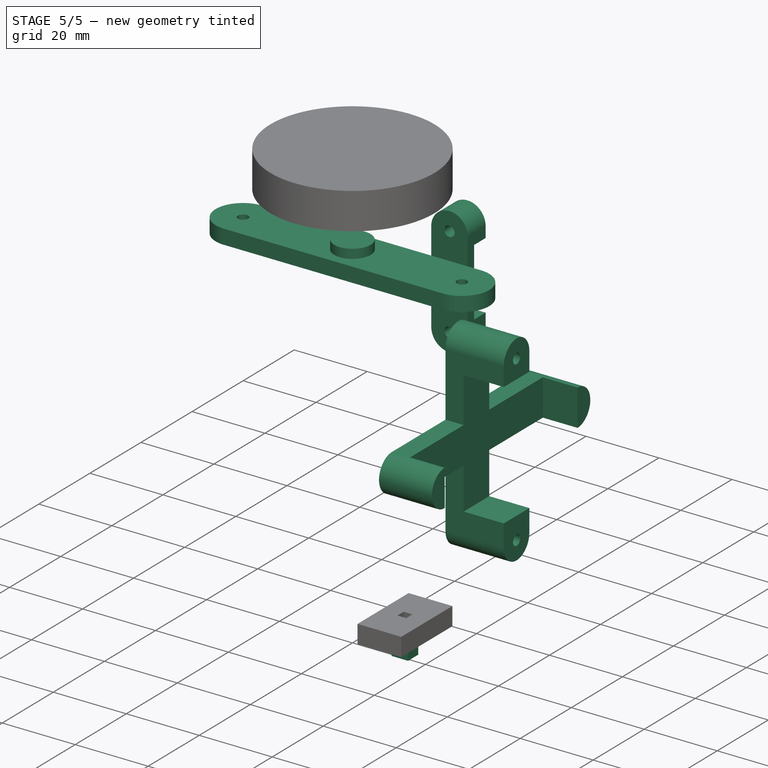
[diagram: stage 5 of 5 — iso view after this stage's code; geometry added in this stage tinted green]
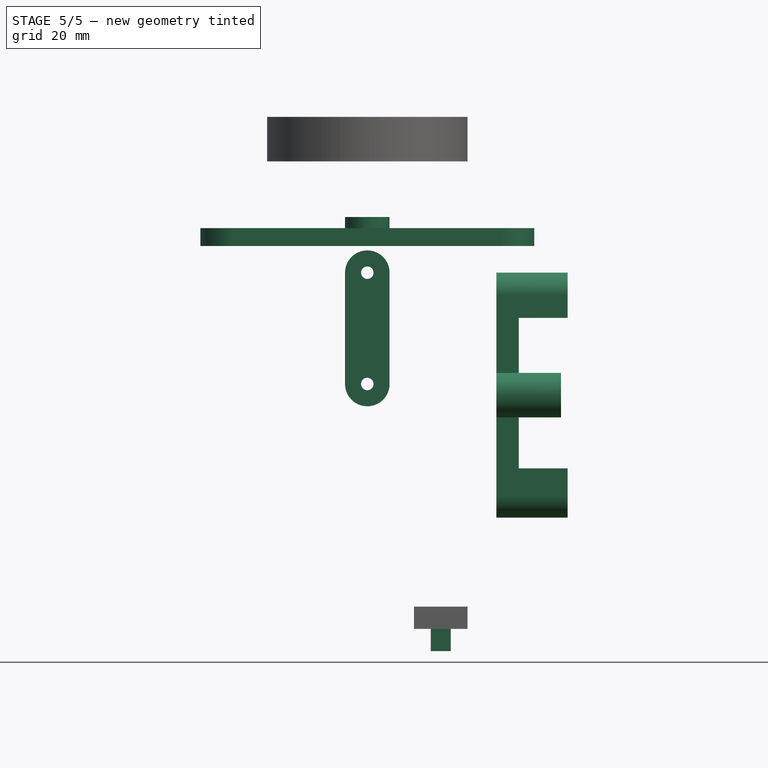
[diagram: stage 5 of 5 — front view after this stage's code; geometry added in this stage tinted green]
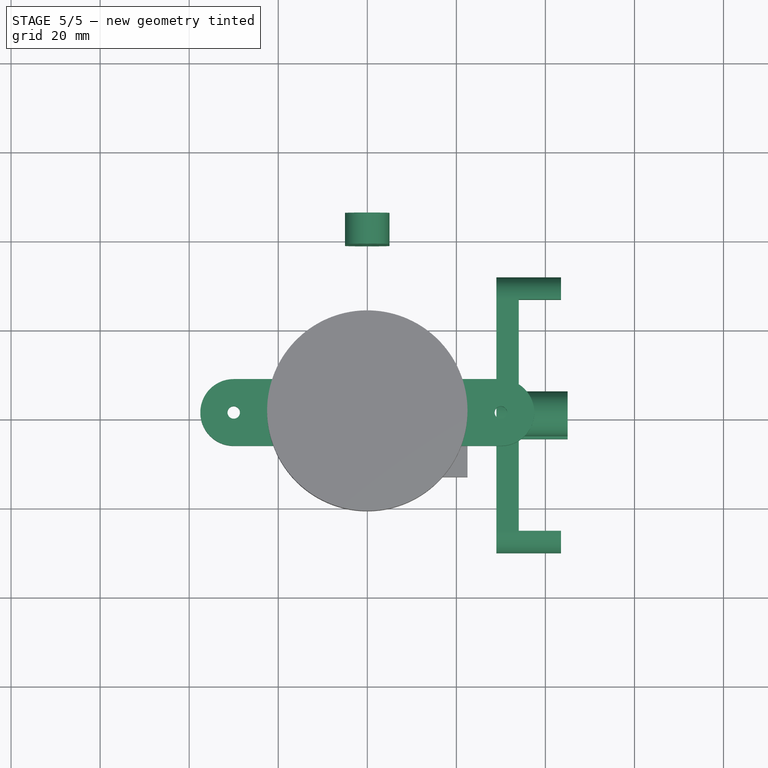
[diagram: stage 5 of 5 — top view after this stage's code; geometry added in this stage tinted green]
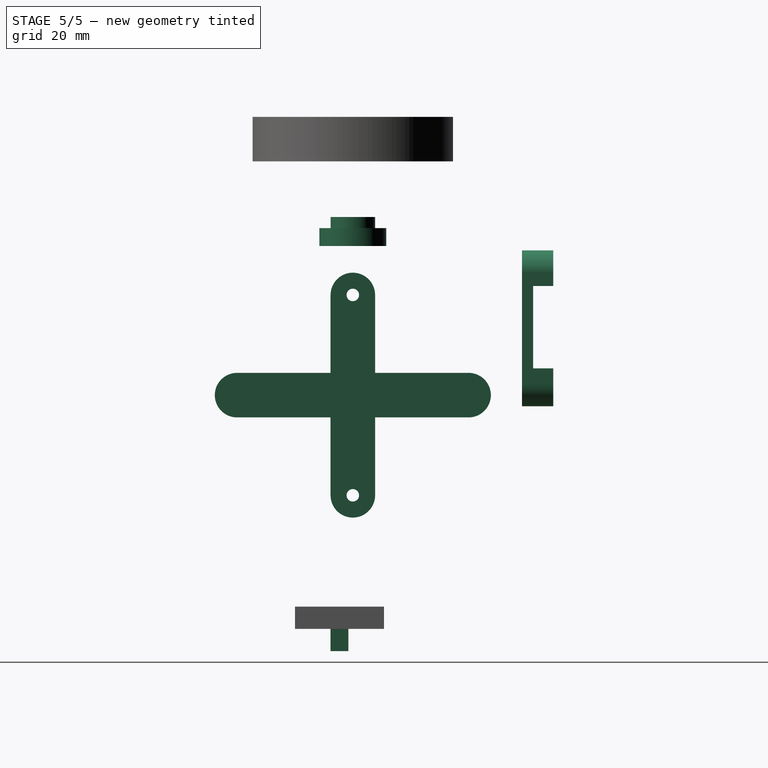
[diagram: stage 5 of 5 — right view after this stage's code; geometry added in this stage tinted green]
FEATURE [PartDesign::Body] Body001  label="deckel"
  Group = -> [ShapeBinder,Sketch014,Pad003,Sketch015,Pocket011,Sketch017,Pocket012,Sketch018,Pocket013,Sketch019,Pocket014,Sketch020,Pocket015]
  Origin = -> Origin001
  Tip = -> Pocket015
FEATURE [PartDesign::ShapeBinder] ShapeBinder001
  Support = -> [Pocket015]
  TraceSupport = false
FEATURE [Sketcher::SketchObject] Sketch021
  FullyConstrained = true
  MapMode = 5
  Placement = pos=(0,3.03e-14,95) rot=(1,0,0;3.14159rad)
  Support = -> [ShapeBinder001]
  sketch-geometry (6):
    g0: ArcOfCircle CenterX=-30 CenterY=0 CenterZ=0 NormalX=0 NormalY=0 NormalZ=1 AngleXU=0 Radius=7.5 StartAngle=1.5708 EndAngle=4.71239
    g1: ArcOfCircle CenterX=30 CenterY=0 CenterZ=0 NormalX=0 NormalY=0 NormalZ=1 AngleXU=0 Radius=7.5 StartAngle=4.71239 EndAngle=7.85398
    g2: LineSegment StartX=-30 StartY=-7.5 StartZ=0 EndX=30 EndY=-7.5 EndZ=0
    g3: LineSegment StartX=30 StartY=7.5 StartZ=0 EndX=-30 EndY=7.5 EndZ=0
    g4: Circle CenterX=-30 CenterY=0 CenterZ=0 NormalX=0 NormalY=0 NormalZ=1 AngleXU=0 Radius=1.4
    g5: Circle CenterX=30 CenterY=0 CenterZ=0 NormalX=0 NormalY=0 NormalZ=1 AngleXU=0 Radius=1.4
  constraints (13):
    c: Tangent(g0,g2) = -1.5708
    c: Tangent(g2,g1) = -1.5708
    c: Tangent(g1,g3) = -1.5708
    c: Tangent(g3,g0) = -1.5708
    c: Equal(g0,g1)
    c: PointOnObject(g0,g-1)
    c: Distance(g0,g1) = 60
    c: Symmetric(g0,g1,g-2)
    c: Diameter(g0) = 15
    c: Coincident(g4,g0)
    c: Coincident(g5,g1)
    c: Diameter(g5) = 2.8
    c: Equal(g4,g5)
FEATURE [PartDesign::Pad] Pad004
  Direction = (0,-3e-16,-1)
  Length = 4
  Length2 = 10
  Profile = -> Sketch021
  ReferenceAxis = -> Sketch021 [N_Axis]
  Type = 0
FEATURE [Sketcher::SketchObject] Sketch022
  FullyConstrained = true
  MapMode = 5
  Placement = pos=(0,0,95) rot=(0,0,1;0rad)
  Support = -> [Pad004]
  sketch-geometry (1):
    g0: Circle CenterX=0 CenterY=0 CenterZ=0 NormalX=0 NormalY=0 NormalZ=1 AngleXU=0 Radius=5
  constraints (2):
    c: Coincident(g0,g-1)
    c: Diameter(g0) = 10
FEATURE [PartDesign::Pad] Pad005
  BaseFeature = -> Pad004
  Direction = (0,0,1)
  Length = 2.5
  Length2 = 10
  Profile = -> Sketch022
  ReferenceAxis = -> Sketch022 [N_Axis]
  Type = 0
FEATURE [PartDesign::Body] Body002  label="schnalle_deckel"
  Group = -> [ShapeBinder001,Sketch021,Pad004,Sketch022,Pad005]
  Origin = -> Origin002
  Tip = -> Pad005
FEATURE [PartDesign::ShapeBinder] ShapeBinder002
  Support = -> [Fillet]
  TraceSupport = false
FEATURE [Sketcher::SketchObject] Sketch023
  FullyConstrained = true
  MapMode = 5
  Placement = pos=(0,45,0) rot=(1,0,0;1.5708rad)
  Support = -> [ShapeBinder002]
  sketch-geometry (6):
    g0: ArcOfCircle CenterX=0 CenterY=85 CenterZ=0 NormalX=0 NormalY=0 NormalZ=1 AngleXU=0 Radius=5 StartAngle=0 EndAngle=3.14159
    g1: ArcOfCircle CenterX=0 CenterY=60 CenterZ=0 NormalX=0 NormalY=0 NormalZ=1 AngleXU=0 Radius=5 StartAngle=3.14159 EndAngle=6.28319
    g2: LineSegment StartX=-5 StartY=85 StartZ=0 EndX=-5 EndY=60 EndZ=0
    g3: LineSegment StartX=5 StartY=60 StartZ=0 EndX=5 EndY=85 EndZ=0
    g4: Circle CenterX=0 CenterY=85 CenterZ=0 NormalX=0 NormalY=0 NormalZ=1 AngleXU=0 Radius=1.4
    g5: Circle CenterX=0 CenterY=60 CenterZ=0 NormalX=0 NormalY=0 NormalZ=1 AngleXU=0 Radius=1.4
  constraints (14):
    c: Tangent(g0,g2) = -1.5708
    c: Tangent(g2,g1) = -1.5708
    c: Tangent(g1,g3) = -1.5708
    c: Tangent(g3,g0) = -1.5708
    c: Equal(g0,g1)
    c: PointOnObject(g0,g-2)
    c: PointOnObject(g1,g-2)
    c: Distance(g1,g0) = 25
    c: Diameter(g0) = 10
    c: Distance(g-1,g1) = 60
    c: Coincident(g4,g0)
    c: Coincident(g5,g1)
    c: Diameter(g4) = 2.8
    c: Diameter(g5) = 2.8
FEATURE [PartDesign::Pad] Pad006
  Direction = (0,-1,2e-16)
  Length = 7
  Length2 = 10
  Profile = -> Sketch023
  ReferenceAxis = -> Sketch023 [N_Axis]
  Type = 0
FEATURE [Sketcher::SketchObject] Sketch024
  FullyConstrained = true
  MapMode = 5
  Placement = pos=(0,45,-1.17e-14) rot=(0,0.707107,0.707107;3.14159rad)
  Support = -> [Pad006]
  sketch-geometry (4):
    g0: LineSegment StartX=-7.5 StartY=82 StartZ=0 EndX=7.5 EndY=82 EndZ=0
    g1: LineSegment StartX=7.5 StartY=82 StartZ=0 EndX=7.5 EndY=63.5 EndZ=0
    g2: LineSegment StartX=7.5 StartY=63.5 StartZ=0 EndX=-7.5 EndY=63.5 EndZ=0
    g3: LineSegment StartX=-7.5 StartY=63.5 StartZ=0 EndX=-7.5 EndY=82 EndZ=0
  constraints (11):
    c: Coincident(g0,g1)
    c: Coincident(g1,g2)
    c: Coincident(g2,g3)
    c: Coincident(g3,g0)
    c: Horizontal(g0)
    c: Vertical(g1)
    c: Vertical(g3)
    c: Distance(g1) = 18.5
    c: DistanceX(g0,g0) = 15
    c: DistanceY(g-1,g1) = 63.5
    c: Symmetric(g2,g1,g-2)
FEATURE [PartDesign::Pocket] Pocket016
  BaseFeature = -> Pad006
  Direction = (0,-1,2e-16)
  Length = 4.5
  Length2 = 5
  Profile = -> Sketch024
  ReferenceAxis = -> Sketch024 [N_Axis]
  Type = 0
FEATURE [PartDesign::Body] Body003  label="schnalle_rfid"
  Group = -> [ShapeBinder002,Sketch023,Pad006,Sketch024,Pocket016]
  Origin = -> Origin003
  Tip = -> Pocket016
FEATURE [PartDesign::ShapeBinder] ShapeBinder003
  Support = -> [Fillet]
  TraceSupport = false
FEATURE [Sketcher::SketchObject] Sketch025
  FullyConstrained = true
  MapMode = 5
  Placement = pos=(45,0,0) rot=(0.57735,-0.57735,-0.57735;2.0944rad)
  Support = -> [ShapeBinder003]
  sketch-geometry (15):
    g0: ArcOfCircle CenterX=0 CenterY=80 CenterZ=0 NormalX=0 NormalY=0 NormalZ=1 AngleXU=0 Radius=5 StartAngle=-9e-16 EndAngle=3.14159
    g1: ArcOfCircle CenterX=0 CenterY=35 CenterZ=0 NormalX=0 NormalY=0 NormalZ=1 AngleXU=0 Radius=5 StartAngle=3.14159 EndAngle=6.28319
    g2: ArcOfCircle CenterX=-26 CenterY=57.5 CenterZ=0 NormalX=0 NormalY=0 NormalZ=1 AngleXU=0 Radius=5 StartAngle=1.5708 EndAngle=4.71239
    g3: ArcOfCircle CenterX=26 CenterY=57.5 CenterZ=0 NormalX=0 NormalY=0 NormalZ=1 AngleXU=0 Radius=5 StartAngle=4.71239 EndAngle=7.85398
    g4: LineSegment StartX=-26 StartY=62.5 StartZ=0 EndX=-5 EndY=62.5 EndZ=0
    g5: LineSegment StartX=-5 StartY=62.5 StartZ=0 EndX=-5 EndY=80 EndZ=0
    g6: LineSegment StartX=5 StartY=80 StartZ=0 EndX=5 EndY=62.5 EndZ=0
    g7: LineSegment StartX=5 StartY=62.5 StartZ=0 EndX=26 EndY=62.5 EndZ=0
    g8: LineSegment StartX=26 StartY=52.5 StartZ=0 EndX=5 EndY=52.5 EndZ=0
    g9: LineSegment StartX=5 StartY=52.5 StartZ=0 EndX=5 EndY=35 EndZ=0
    g10: LineSegment StartX=-26 StartY=52.5 StartZ=0 EndX=-5 EndY=52.5 EndZ=0
    g11: LineSegment StartX=-5 StartY=52.5 StartZ=0 EndX=-5 EndY=35 EndZ=0
    g12: LineSegment StartX=-26 StartY=57.5 StartZ=0 EndX=26 EndY=57.5 EndZ=0
    g13: Circle CenterX=0 CenterY=80 CenterZ=0 NormalX=0 NormalY=0 NormalZ=1 AngleXU=0 Radius=1.4
    g14: Circle CenterX=0 CenterY=35 CenterZ=0 NormalX=0 NormalY=0 NormalZ=1 AngleXU=0 Radius=1.4
  constraints (36):
    c: Equal(g0,g1)
    c: PointOnObject(g0,g-2)
    c: Equal(g2,g3)
    c: Tangent(g2,g4) = 1.5708
    c: Coincident(g4,g5)
    c: Vertical(g5)
    c: Tangent(g0,g6) = 1.5708
    c: Coincident(g6,g7)
    c: Horizontal(g7)
    c: Tangent(g3,g8) = 1.5708
    c: Coincident(g8,g9)
    c: Vertical(g9)
    c: Tangent(g2,g10) = -1.5708
    c: Coincident(g10,g11)
    c: Vertical(g11)
    c: Tangent(g11,g1) = -1.5708
    c: Tangent(g9,g1) = 1.5708
    c: Horizontal(g4)
    c: Vertical(g6)
    c: Horizontal(g8)
    c: Horizontal(g10)
    c: Diameter(g0) = 10
    c: Diameter(g2) = 10
    c: Symmetric(g2,g3,g-2)
    c: Tangent(g7,g3) = 1.5708
    c: Distance(g1,g0) = 45
    c: Tangent(g5,g0) = 1.5708
    c: Distance(g-1,g1) = 35
    c: Coincident(g12,g2)
    c: Coincident(g12,g3)
    c: Symmetric(g1,g0,g12)
    c: Distance(g2,g3) = 52
    c: Coincident(g13,g0)
    c: Coincident(g14,g1)
    c: Diameter(g13) = 2.8
    c: Equal(g13,g14)
FEATURE [PartDesign::Pad] Pad007
  Direction = (-1,0,0)
  Length = 16
  Length2 = 10
  Profile = -> Sketch025
  ReferenceAxis = -> Sketch025 [N_Axis]
  Type = 0
FEATURE [Sketcher::SketchObject] Sketch026
  FullyConstrained = true
  MapMode = 5
  Placement = pos=(45,0,0) rot=(0.57735,0.57735,0.57735;2.0944rad)
  Support = -> [Pad007]
  sketch-geometry (4):
    g0: LineSegment StartX=-26 StartY=74.86 StartZ=0 EndX=26 EndY=74.86 EndZ=0
    g1: LineSegment StartX=26 StartY=74.86 StartZ=0 EndX=26 EndY=41.06 EndZ=0
    g2: LineSegment StartX=26 StartY=41.06 StartZ=0 EndX=-26 EndY=41.06 EndZ=0
    g3: LineSegment StartX=-26 StartY=41.06 StartZ=0 EndX=-26 EndY=74.86 EndZ=0
  constraints (11):
    c: Coincident(g0,g1)
    c: Coincident(g1,g2)
    c: Coincident(g2,g3)
    c: Coincident(g3,g0)
    c: Horizontal(g2)
    c: Vertical(g1)
    c: Vertical(g3)
    c: Symmetric(g0,g0,g-2)
    c: Distance(g0) = 52
    c: Distance(g1) = 33.8
    c: DistanceY(g-1,g2) = 41.06
FEATURE [PartDesign::Pocket] Pocket017
  BaseFeature = -> Pad007
  Direction = (-1,0,0)
  Length = 11
  Length2 = 5
  Profile = -> Sketch026
  ReferenceAxis = -> Sketch026 [N_Axis]
  Type = 0
FEATURE [Sketcher::SketchObject] Sketch027
  FullyConstrained = true
  MapMode = 5
  Placement = pos=(45,0,0) rot=(0.57735,0.57735,0.57735;2.0944rad)
  Support = -> [Pocket017]
  sketch-geometry (4):
    g0: LineSegment StartX=-41.485 StartY=65.98 StartZ=0 EndX=41.485 EndY=65.98 EndZ=0
    g1: LineSegment StartX=41.485 StartY=65.98 StartZ=0 EndX=41.485 EndY=50.16 EndZ=0
    g2: LineSegment StartX=41.485 StartY=50.16 StartZ=0 EndX=-41.485 EndY=50.16 EndZ=0
    g3: LineSegment StartX=-41.485 StartY=50.16 StartZ=0 EndX=-41.485 EndY=65.98 EndZ=0
  constraints (11):
    c: Coincident(g0,g1)
    c: Coincident(g1,g2)
    c: Coincident(g2,g3)
    c: Coincident(g3,g0)
    c: Horizontal(g2)
    c: Vertical(g1)
    c: Vertical(g3)
    c: Distance(g1) = 15.82
    c: Distance(g0) = 82.97
    c: Symmetric(g0,g0,g-2)
    c: DistanceY(g-1,g1) = 50.16
FEATURE [PartDesign::Pocket] Pocket018
  BaseFeature = -> Pocket017
  Direction = (-1,0,0)
  Length = 1.5
  Length2 = 5
  Profile = -> Sketch027
  ReferenceAxis = -> Sketch027 [N_Axis]
  Type = 0
FEATURE [Sketcher::SketchObject] Sketch029
  FullyConstrained = true
  MapMode = 5
  Placement = pos=(0,0,5) rot=(1,0,0;3.14159rad)
  Support = -> [Pad008]
  sketch-geometry (4):
    g0: LineSegment StartX=14.25 StartY=5 StartZ=0 EndX=18.75 EndY=5 EndZ=0
    g1: LineSegment StartX=18.75 StartY=5 StartZ=0 EndX=18.75 EndY=1 EndZ=0
    g2: LineSegment StartX=18.75 StartY=1 StartZ=0 EndX=14.25 EndY=1 EndZ=0
    g3: LineSegment StartX=14.25 StartY=1 StartZ=0 EndX=14.25 EndY=5 EndZ=0
  constraints (12):
    c: Coincident(g0,g1)
    c: Coincident(g1,g2)
    c: Coincident(g2,g3)
    c: Coincident(g3,g0)
    c: Horizontal(g0)
    c: Horizontal(g2)
    c: Vertical(g1)
    c: Vertical(g3)
    c: Distance(g0) = 4.5
    c: DistanceY(g1,g1) = 4
    c: DistanceX(g-2,g2) = 14.25
    c: DistanceY(g-1,g2) = 1
FEATURE [PartDesign::Pad] Pad009
  BaseFeature = -> Pad008
  Direction = (0,0,-1)
  Length = 5
  Length2 = 10
  Profile = -> Sketch029
  ReferenceAxis = -> Sketch029 [N_Axis]
  Type = 0
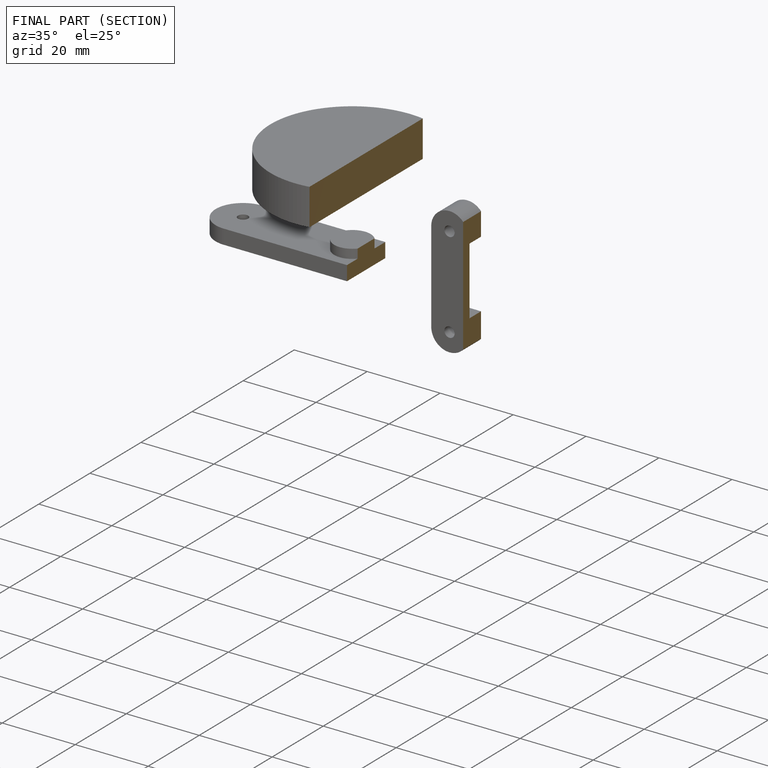
[diagram: finished part — half-section view (interior)]
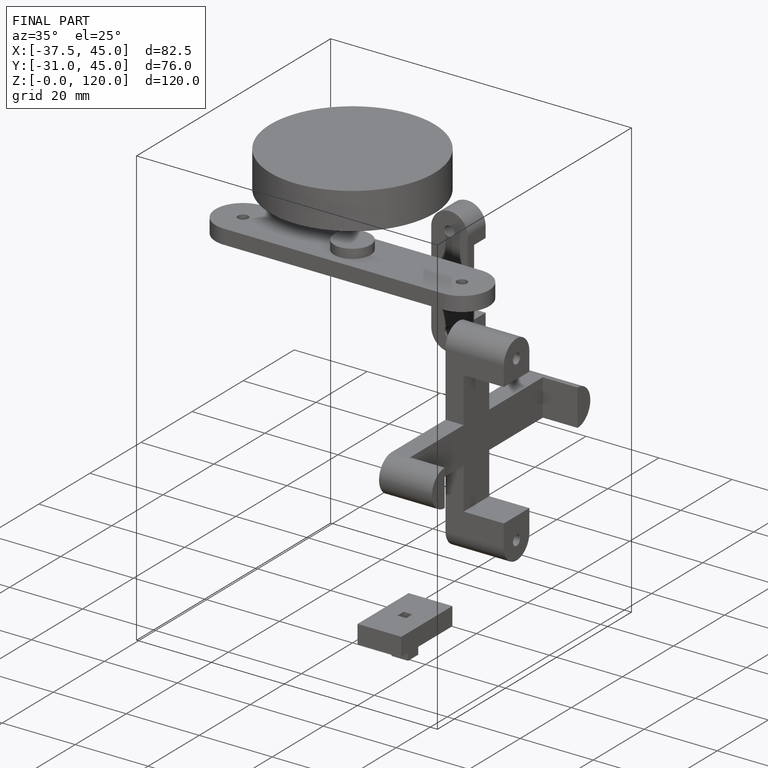
[diagram: finished part — iso view with bounding-box wireframe]
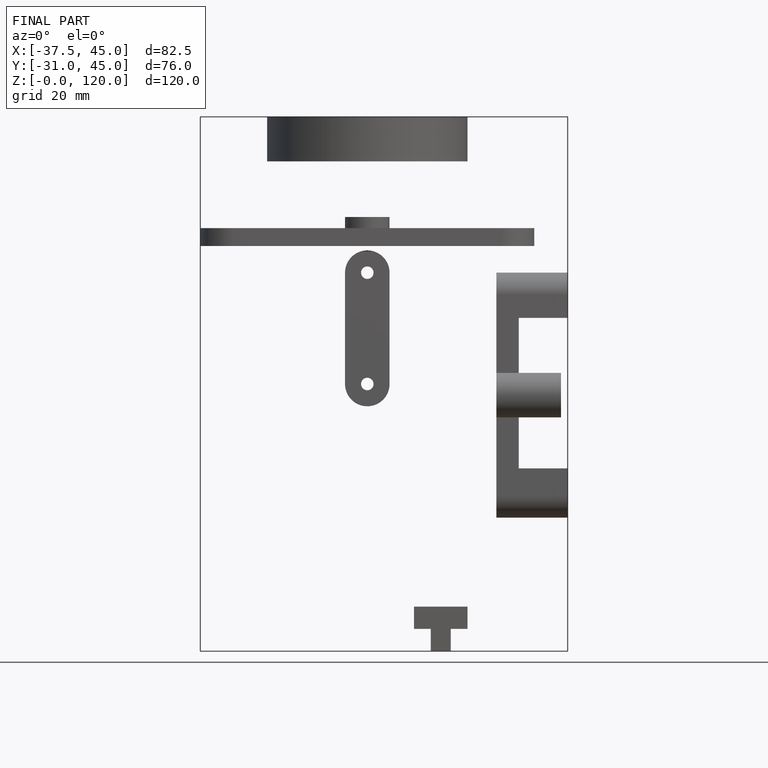
[diagram: finished part — front view with bounding-box wireframe]
